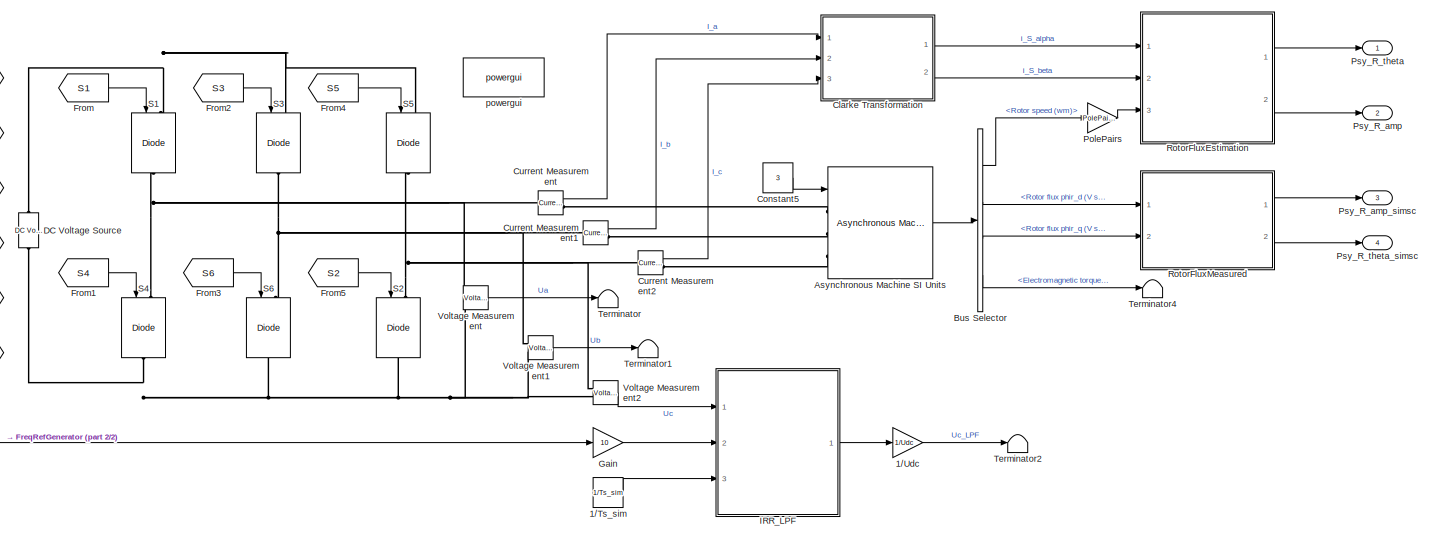
[diagram: root canvas - part 1/2, right side, full height]
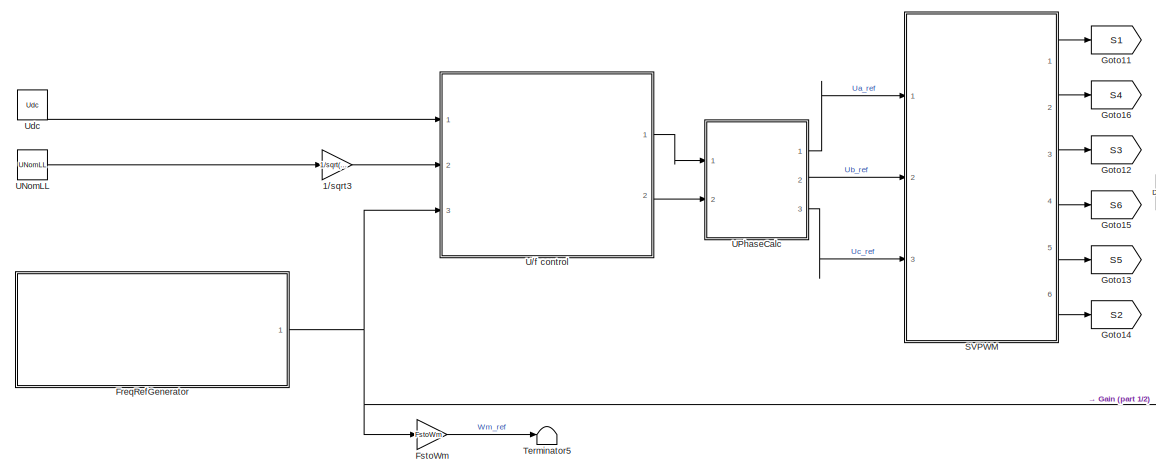
[diagram: root canvas - part 2/2, left side, full height]
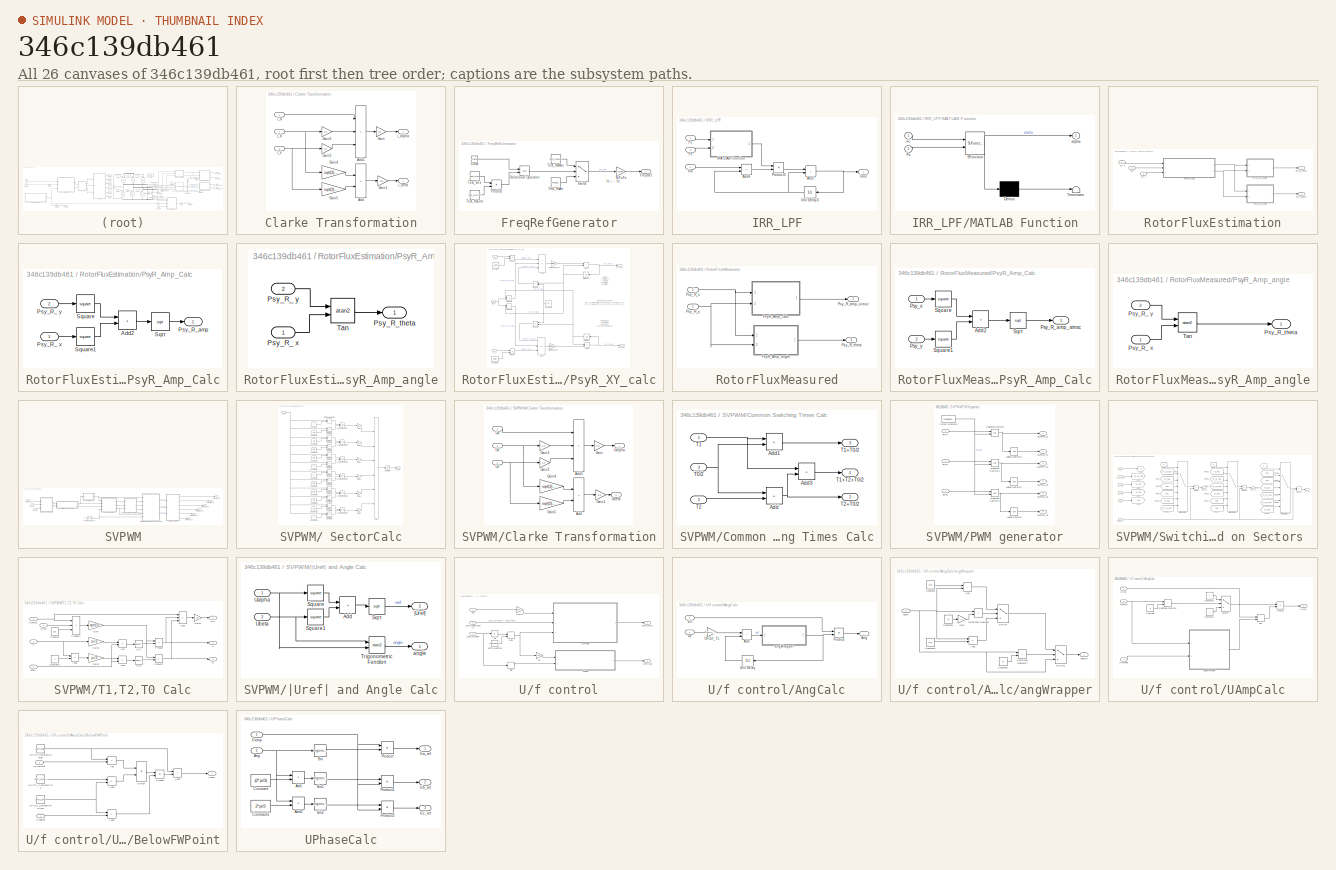
[diagram: thumbnail index - all 26 canvases of the model, root first then tree order]
MODEL slx_346c139db461
KIND model
CONFIG AbsTol = auto
CONFIG EnableMultiTasking = off
CONFIG FixedStep = Ts_sim
CONFIG MaxStep = Ts_sim
CONFIG MinStep = auto
CONFIG RelTol = 1e-3
CONFIG SampleTimeConstraint = Unconstrained
CONFIG SolverName = FixedStepAuto
CONFIG StartTime = 0.0
CONFIG StopTime = SimTime
BLOCK [Constant] 1//Ts_sim
  Value = 1/Ts_sim
BLOCK [Gain] 1//Udc
  Gain = 1/Udc
BLOCK [Gain] 1//sqrt3
  Gain = 1/sqrt(3)
BLOCK [Reference] Asynchronous Machine SI Units  REF=spsAsynchronousMachineSIUnitsLib/Asynchronous Machine
SI Units
  Ports = [1, 1, 0, 0, 0, 3]
  SourceBlock = spsAsynchronousMachineSIUnitsLib/Asynchronous Machine\nSI Units
  SourceProductBaseCode = PS
  SourceType = Asynchronous Machine
BLOCK [BusSelector] Bus Selector
  OutputSignals = Mechanical.Rotor speed (wm),Rotor measurements.Rotor flux phir_d (V s),Rotor measurements.Rotor flux phir_q (V s),Mechanical.Electromagnetic torque Te (N*m)
  Ports = [1, 4]
BLOCK [SubSystem] Clarke Transformation
  Ports = [3, 2]
  RequestExecContextInheritance = off
BLOCK [Sum] Clarke Transformation/Add
  IconShape = rectangular
  Inputs = +-
  Ports = [2, 1]
BLOCK [Sum] Clarke Transformation/Add1
  IconShape = rectangular
  Inputs = +--
  Ports = [3, 1]
BLOCK [Gain] Clarke Transformation/Gain
  Gain = 2/3
BLOCK [Gain] Clarke Transformation/Gain1
  Gain = 2/3
BLOCK [Gain] Clarke Transformation/Gain2
  Gain = 1/2
BLOCK [Gain] Clarke Transformation/Gain3
  Gain = 1/2
BLOCK [Gain] Clarke Transformation/Gain4
  Gain = sqrt(3) / 2
BLOCK [Gain] Clarke Transformation/Gain5
  Gain = sqrt(3) / 2
BLOCK [Inport] Clarke Transformation/i_a
BLOCK [Outport] Clarke Transformation/i_alpha
BLOCK [Inport] Clarke Transformation/i_b
  Port = 2
BLOCK [Outport] Clarke Transformation/i_beta
  Port = 2
BLOCK [Inport] Clarke Transformation/i_c
  Port = 3
BLOCK [Constant] Constant5
  Value = 3
BLOCK [Reference] Current Measurement  REF=spsCurrentMeasurementLib/Current Measurement
  Ports = [0, 1, 0, 0, 0, 1, 1]
  SourceBlock = spsCurrentMeasurementLib/Current Measurement
  SourceProductBaseCode = PS
  SourceType = Current Measurement
  UserDataPersistent = on
BLOCK [Reference] Current Measurement1  REF=spsCurrentMeasurementLib/Current Measurement
  Ports = [0, 1, 0, 0, 0, 1, 1]
  SourceBlock = spsCurrentMeasurementLib/Current Measurement
  SourceProductBaseCode = PS
  SourceType = Current Measurement
  UserDataPersistent = on
BLOCK [Reference] Current Measurement2  REF=spsCurrentMeasurementLib/Current Measurement
  Ports = [0, 1, 0, 0, 0, 1, 1]
  SourceBlock = spsCurrentMeasurementLib/Current Measurement
  SourceProductBaseCode = PS
  SourceType = Current Measurement
  UserDataPersistent = on
BLOCK [Reference] DC Voltage Source  REF=spsDCVoltageSourceLib/DC Voltage Source
  Ports = [0, 0, 0, 0, 0, 1, 1]
  SourceBlock = spsDCVoltageSourceLib/DC Voltage Source
  SourceProductBaseCode = PS
  SourceType = DC Voltage Source
BLOCK [SubSystem] FreqRefGenerator
  Ports = [0, 1]
  RequestExecContextInheritance = off
BLOCK [Clock] FreqRefGenerator/Clock
BLOCK [Outport] FreqRefGenerator/FreqRef
BLOCK [Gain] FreqRefGenerator/NrToFs
  Gain = NsToFs
BLOCK [Product] FreqRefGenerator/Product
  Ports = [2, 1]
BLOCK [RelationalOperator] FreqRefGenerator/Relational Operator
  InputSameDT = off
  OutDataTypeStr = boolean
  Ports = [2, 1]
  RndMeth = Simplest
BLOCK [Switch] FreqRefGenerator/Switch
  Criteria = u2 ~= 0
  InputSameDT = off
  SaturateOnIntegerOverflow = off
  Threshold = Ts_stair * NsCntr
BLOCK [Reference] FreqRefGenerator/Test_NsArr  REF=simulink/Sources/Repeating
Sequence
Stair
  Ports = [0, 1]
  SourceBlock = simulink/Sources/Repeating\nSequence\nStair
  SourceProductBaseCode = SL
  SourceType = Repeating Sequence Stair
BLOCK [Constant] FreqRefGenerator/Test_NsCntr
  Value = Test_NsCntr
BLOCK [Constant] FreqRefGenerator/Test_NsMax
  Value = Test_NsMax
BLOCK [Constant] FreqRefGenerator/Test_wTs
  Value = Test_wTs
BLOCK [From] From
  GotoTag = S1
BLOCK [From] From1
  GotoTag = S4
BLOCK [From] From2
  GotoTag = S3
BLOCK [From] From3
  GotoTag = S6
BLOCK [From] From4
  GotoTag = S5
BLOCK [From] From5
  GotoTag = S2
BLOCK [Gain] FstoWm
  Gain = FstoWm
BLOCK [Gain] Gain
  Gain = 10
BLOCK [Goto] Goto11
  GotoTag = S1
BLOCK [Goto] Goto12
  GotoTag = S3
BLOCK [Goto] Goto13
  GotoTag = S5
BLOCK [Goto] Goto14
  GotoTag = S2
BLOCK [Goto] Goto15
  GotoTag = S6
BLOCK [Goto] Goto16
  GotoTag = S4
BLOCK [SubSystem] IRR_LPF
  Ports = [3, 1]
  RequestExecContextInheritance = off
BLOCK [Sum] IRR_LPF/Add6
  IconShape = rectangular
  Inputs = +-
  Ports = [2, 1]
BLOCK [Sum] IRR_LPF/Add7
  IconShape = rectangular
  Ports = [2, 1]
BLOCK [Inport] IRR_LPF/Fc
  Port = 2
BLOCK [Inport] IRR_LPF/Fs
  Port = 3
BLOCK [SubSystem] IRR_LPF/MATLAB Function
  ErrorFcn = Stateflow.Translate.translate
  PermitHierarchicalResolution = ExplicitOnly
  Ports = [2, 1]
  RequestExecContextInheritance = off
  SFBlockType = MATLAB Function
  TreatAsAtomicUnit = on
BLOCK [Demux] IRR_LPF/MATLAB Function/ Demux 
  Outputs = 1
  Ports = [1, 1]
BLOCK [S-Function] IRR_LPF/MATLAB Function/ SFunction 
  EnableBusSupport = on
  FunctionName = sf_sfun
  PortCounts = [2 2]
  Ports = [2, 2]
  SFcnIsStateOwnerBlock = off
  SFunctionDeploymentMode = off
  Tag = Stateflow S-Function 2
BLOCK [Terminator] IRR_LPF/MATLAB Function/ Terminator 
BLOCK [Inport] IRR_LPF/MATLAB Function/Fc
BLOCK [Inport] IRR_LPF/MATLAB Function/Fs
  Port = 2
BLOCK [Outport] IRR_LPF/MATLAB Function/alpha
BLOCK [Product] IRR_LPF/Product3
  Ports = [2, 1]
BLOCK [Inport] IRR_LPF/Uin
BLOCK [UnitDelay] IRR_LPF/Unit Delay3
  HasFrameUpgradeWarning = on
  NameLocation = top
  SampleTime = -1
BLOCK [Outport] IRR_LPF/Uout
BLOCK [Gain] PolePairs
  Gain = PolePairs
BLOCK [Outport] Psy_R_amp
  Port = 2
BLOCK [Outport] Psy_R_amp_simsc
  Port = 3
BLOCK [Outport] Psy_R_theta
BLOCK [Outport] Psy_R_theta_simsc
  Port = 4
BLOCK [SubSystem] RotorFluxEstimation
  Ports = [3, 2]
  RequestExecContextInheritance = off
BLOCK [SubSystem] RotorFluxEstimation/PsyR_Amp_Calc
  Ports = [2, 1]
  RequestExecContextInheritance = off
BLOCK [Sum] RotorFluxEstimation/PsyR_Amp_Calc/Add2
  IconShape = rectangular
  Ports = [2, 1]
BLOCK [Inport] RotorFluxEstimation/PsyR_Amp_Calc/Psy_R_ x
BLOCK [Inport] RotorFluxEstimation/PsyR_Amp_Calc/Psy_R_ y
  Port = 2
BLOCK [Outport] RotorFluxEstimation/PsyR_Amp_Calc/Psy_R_amp
BLOCK [Sqrt] RotorFluxEstimation/PsyR_Amp_Calc/Sqrt
BLOCK [Math] RotorFluxEstimation/PsyR_Amp_Calc/Square
  Operator = square
  Ports = [1, 1]
BLOCK [Math] RotorFluxEstimation/PsyR_Amp_Calc/Square1
  Operator = square
  Ports = [1, 1]
BLOCK [SubSystem] RotorFluxEstimation/PsyR_Amp_angle
  Ports = [2, 1]
  RequestExecContextInheritance = off
BLOCK [Inport] RotorFluxEstimation/PsyR_Amp_angle/Psy_R_ x
BLOCK [Inport] RotorFluxEstimation/PsyR_Amp_angle/Psy_R_ y
  Port = 2
BLOCK [Outport] RotorFluxEstimation/PsyR_Amp_angle/Psy_R_theta
BLOCK [Trigonometry] RotorFluxEstimation/PsyR_Amp_angle/Tan
  Operator = atan2
  Ports = [2, 1]
BLOCK [SubSystem] RotorFluxEstimation/PsyR_XY_calc
  Ports = [3, 2]
  RequestExecContextInheritance = off
BLOCK [Sum] RotorFluxEstimation/PsyR_XY_calc/Add
  IconShape = rectangular
  Inputs = +--
  Ports = [3, 1]
BLOCK [Sum] RotorFluxEstimation/PsyR_XY_calc/Add1
  IconShape = rectangular
  Ports = [2, 1]
BLOCK [Sum] RotorFluxEstimation/PsyR_XY_calc/Add2
  IconShape = rectangular
  Ports = [2, 1]
BLOCK [Sum] RotorFluxEstimation/PsyR_XY_calc/Add3
  IconShape = rectangular
  Inputs = -++
  Ports = [3, 1]
BLOCK [Constant] RotorFluxEstimation/PsyR_XY_calc/Constant
  Value = Lm / Tr
BLOCK [Constant] RotorFluxEstimation/PsyR_XY_calc/Constant1
  Value = Lm / Tr
BLOCK [Constant] RotorFluxEstimation/PsyR_XY_calc/Constant3
  NameLocation = top
  Value = 1/Tr
BLOCK [Product] RotorFluxEstimation/PsyR_XY_calc/Product
  Ports = [2, 1]
BLOCK [Product] RotorFluxEstimation/PsyR_XY_calc/Product1
  Ports = [2, 1]
BLOCK [Product] RotorFluxEstimation/PsyR_XY_calc/Product2
  Ports = [2, 1]
BLOCK [Product] RotorFluxEstimation/PsyR_XY_calc/Product3
  Ports = [2, 1]
BLOCK [Product] RotorFluxEstimation/PsyR_XY_calc/Product4
  NameLocation = top
  Ports = [2, 1]
BLOCK [Product] RotorFluxEstimation/PsyR_XY_calc/Product5
  NameLocation = top
  Ports = [2, 1]
BLOCK [Outport] RotorFluxEstimation/PsyR_XY_calc/Psy_R_ x
BLOCK [Outport] RotorFluxEstimation/PsyR_XY_calc/Psy_R_ y
  Port = 2
BLOCK [Gain] RotorFluxEstimation/PsyR_XY_calc/RotFluxEst_Ts
  Gain = RotFluxEst_Ts
BLOCK [Gain] RotorFluxEstimation/PsyR_XY_calc/RotFluxEst_Ts1
  Gain = RotFluxEst_Ts
BLOCK [UnitDelay] RotorFluxEstimation/PsyR_XY_calc/Unit Delay2
  HasFrameUpgradeWarning = on
  NameLocation = top
  SampleTime = -1
BLOCK [UnitDelay] RotorFluxEstimation/PsyR_XY_calc/Unit Delay3
  HasFrameUpgradeWarning = on
  NameLocation = top
  SampleTime = -1
BLOCK [Inport] RotorFluxEstimation/PsyR_XY_calc/i_S_ x
BLOCK [Inport] RotorFluxEstimation/PsyR_XY_calc/i_S_ y
  Port = 3
BLOCK [Inport] RotorFluxEstimation/PsyR_XY_calc/w_R
  Port = 2
BLOCK [Outport] RotorFluxEstimation/Psy_R_amp
  Port = 2
BLOCK [Outport] RotorFluxEstimation/Psy_R_theta
BLOCK [Inport] RotorFluxEstimation/i_S_ x
BLOCK [Inport] RotorFluxEstimation/i_S_ y
  Port = 2
BLOCK [Inport] RotorFluxEstimation/w_R
  Port = 3
BLOCK [SubSystem] RotorFluxMeasured
  Ports = [2, 2]
  RequestExecContextInheritance = off
BLOCK [SubSystem] RotorFluxMeasured/PsyR_Amp_Calc
  Ports = [2, 1]
  RequestExecContextInheritance = off
BLOCK [Sum] RotorFluxMeasured/PsyR_Amp_Calc/Add2
  IconShape = rectangular
  Ports = [2, 1]
BLOCK [Outport] RotorFluxMeasured/PsyR_Amp_Calc/Psy_R_amp_simsc
BLOCK [Inport] RotorFluxMeasured/PsyR_Amp_Calc/Psy_x
BLOCK [Inport] RotorFluxMeasured/PsyR_Amp_Calc/Psy_y
  Port = 2
BLOCK [Sqrt] RotorFluxMeasured/PsyR_Amp_Calc/Sqrt
BLOCK [Math] RotorFluxMeasured/PsyR_Amp_Calc/Square
  Operator = square
  Ports = [1, 1]
BLOCK [Math] RotorFluxMeasured/PsyR_Amp_Calc/Square1
  Operator = square
  Ports = [1, 1]
BLOCK [SubSystem] RotorFluxMeasured/PsyR_Amp_angle
  Ports = [2, 1]
  RequestExecContextInheritance = off
BLOCK [Inport] RotorFluxMeasured/PsyR_Amp_angle/Psy_R_ x
BLOCK [Inport] RotorFluxMeasured/PsyR_Amp_angle/Psy_R_ y
  Port = 2
BLOCK [Outport] RotorFluxMeasured/PsyR_Amp_angle/Psy_R_theta
BLOCK [Trigonometry] RotorFluxMeasured/PsyR_Amp_angle/Tan
  Operator = atan2
  Ports = [2, 1]
BLOCK [Outport] RotorFluxMeasured/Psy_R_amp_simsc
BLOCK [Outport] RotorFluxMeasured/Psy_R_theta
  Port = 2
BLOCK [Inport] RotorFluxMeasured/Psy_R_x
BLOCK [Inport] RotorFluxMeasured/Psy_R_y
  Port = 2
BLOCK [Reference] S1  REF=spsIGBTDiodeLib/IGBT//Diode
  NameLocation = right
  Ports = [1, 0, 0, 0, 0, 1, 1]
  SourceBlock = spsIGBTDiodeLib/IGBT//Diode
  SourceProductBaseCode = PS
  SourceType = IGBT/Diode
BLOCK [Reference] S2  REF=spsIGBTDiodeLib/IGBT//Diode
  NameLocation = right
  Ports = [1, 0, 0, 0, 0, 1, 1]
  SourceBlock = spsIGBTDiodeLib/IGBT//Diode
  SourceProductBaseCode = PS
  SourceType = IGBT/Diode
BLOCK [Reference] S3  REF=spsIGBTDiodeLib/IGBT//Diode
  NameLocation = right
  Ports = [1, 0, 0, 0, 0, 1, 1]
  SourceBlock = spsIGBTDiodeLib/IGBT//Diode
  SourceProductBaseCode = PS
  SourceType = IGBT/Diode
BLOCK [Reference] S4  REF=spsIGBTDiodeLib/IGBT//Diode
  NameLocation = right
  Ports = [1, 0, 0, 0, 0, 1, 1]
  SourceBlock = spsIGBTDiodeLib/IGBT//Diode
  SourceProductBaseCode = PS
  SourceType = IGBT/Diode
BLOCK [Reference] S5  REF=spsIGBTDiodeLib/IGBT//Diode
  NameLocation = right
  Ports = [1, 0, 0, 0, 0, 1, 1]
  SourceBlock = spsIGBTDiodeLib/IGBT//Diode
  SourceProductBaseCode = PS
  SourceType = IGBT/Diode
BLOCK [Reference] S6  REF=spsIGBTDiodeLib/IGBT//Diode
  NameLocation = right
  Ports = [1, 0, 0, 0, 0, 1, 1]
  SourceBlock = spsIGBTDiodeLib/IGBT//Diode
  SourceProductBaseCode = PS
  SourceType = IGBT/Diode
BLOCK [SubSystem] SVPWM
  Ports = [3, 6]
  RequestExecContextInheritance = off
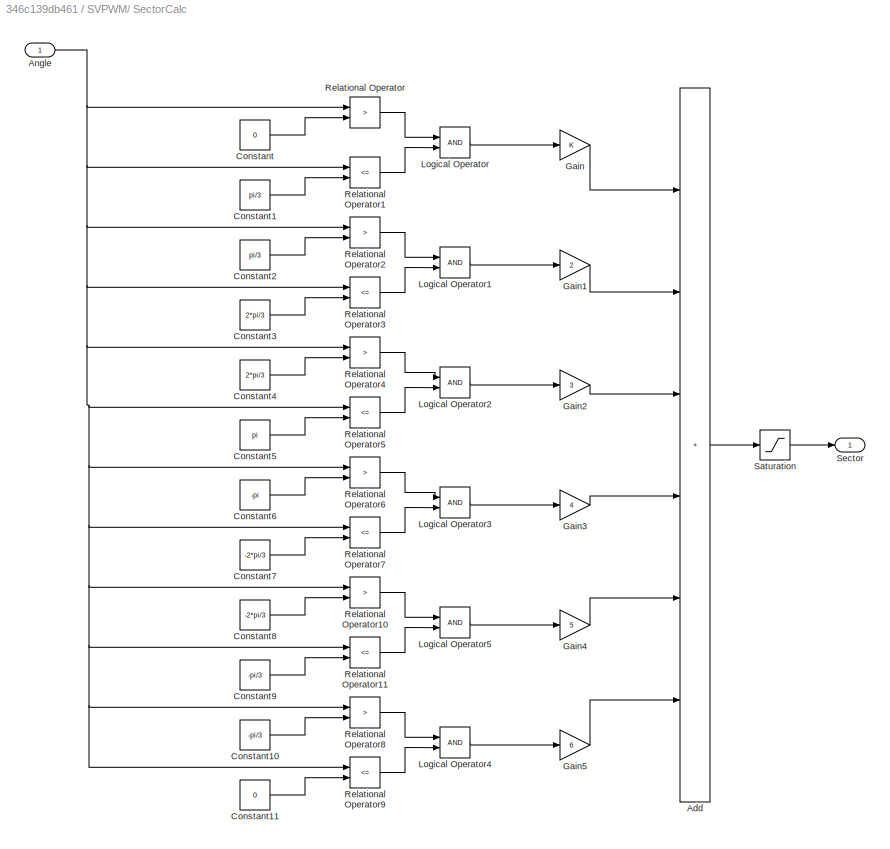
BLOCK [SubSystem] SVPWM/ SectorCalc
  Ports = [1, 1]
  RequestExecContextInheritance = off
BLOCK [Sum] SVPWM/ SectorCalc/Add
  IconShape = rectangular
  Inputs = ++++++
  Ports = [6, 1]
BLOCK [Inport] SVPWM/ SectorCalc/Angle
BLOCK [Constant] SVPWM/ SectorCalc/Constant
  Value = 0
BLOCK [Constant] SVPWM/ SectorCalc/Constant1
  Value = pi/3
BLOCK [Constant] SVPWM/ SectorCalc/Constant10
  Value = -pi/3
BLOCK [Constant] SVPWM/ SectorCalc/Constant11
  Value = 0
BLOCK [Constant] SVPWM/ SectorCalc/Constant2
  Value = pi/3
BLOCK [Constant] SVPWM/ SectorCalc/Constant3
  Value = 2*pi/3
BLOCK [Constant] SVPWM/ SectorCalc/Constant4
  Value = 2*pi/3
BLOCK [Constant] SVPWM/ SectorCalc/Constant5
  Value = pi
BLOCK [Constant] SVPWM/ SectorCalc/Constant6
  Value = -pi
BLOCK [Constant] SVPWM/ SectorCalc/Constant7
  Value = -2*pi/3
BLOCK [Constant] SVPWM/ SectorCalc/Constant8
  Value = -2*pi/3
BLOCK [Constant] SVPWM/ SectorCalc/Constant9
  Value = -pi/3
BLOCK [Gain] SVPWM/ SectorCalc/Gain
BLOCK [Gain] SVPWM/ SectorCalc/Gain1
  Gain = 2
BLOCK [Gain] SVPWM/ SectorCalc/Gain2
  Gain = 3
BLOCK [Gain] SVPWM/ SectorCalc/Gain3
  Gain = 4
BLOCK [Gain] SVPWM/ SectorCalc/Gain4
  Gain = 5
BLOCK [Gain] SVPWM/ SectorCalc/Gain5
  Gain = 6
BLOCK [Logic] SVPWM/ SectorCalc/Logical Operator
  AllPortsSameDT = off
  OutDataTypeStr = boolean
  Ports = [2, 1]
BLOCK [Logic] SVPWM/ SectorCalc/Logical Operator1
  AllPortsSameDT = off
  OutDataTypeStr = boolean
  Ports = [2, 1]
BLOCK [Logic] SVPWM/ SectorCalc/Logical Operator2
  AllPortsSameDT = off
  OutDataTypeStr = boolean
  Ports = [2, 1]
BLOCK [Logic] SVPWM/ SectorCalc/Logical Operator3
  AllPortsSameDT = off
  OutDataTypeStr = boolean
  Ports = [2, 1]
BLOCK [Logic] SVPWM/ SectorCalc/Logical Operator4
  AllPortsSameDT = off
  OutDataTypeStr = boolean
  Ports = [2, 1]
BLOCK [Logic] SVPWM/ SectorCalc/Logical Operator5
  AllPortsSameDT = off
  OutDataTypeStr = boolean
  Ports = [2, 1]
BLOCK [RelationalOperator] SVPWM/ SectorCalc/Relational Operator
  InputSameDT = off
  Operator = >
  OutDataTypeStr = boolean
  Ports = [2, 1]
  RndMeth = Simplest
BLOCK [RelationalOperator] SVPWM/ SectorCalc/Relational Operator1
  InputSameDT = off
  Operator = <=
  OutDataTypeStr = boolean
  Ports = [2, 1]
  RndMeth = Simplest
BLOCK [RelationalOperator] SVPWM/ SectorCalc/Relational Operator10
  InputSameDT = off
  Operator = >
  OutDataTypeStr = boolean
  Ports = [2, 1]
  RndMeth = Simplest
BLOCK [RelationalOperator] SVPWM/ SectorCalc/Relational Operator11
  InputSameDT = off
  Operator = <=
  OutDataTypeStr = boolean
  Ports = [2, 1]
  RndMeth = Simplest
BLOCK [RelationalOperator] SVPWM/ SectorCalc/Relational Operator2
  InputSameDT = off
  Operator = >
  OutDataTypeStr = boolean
  Ports = [2, 1]
  RndMeth = Simplest
BLOCK [RelationalOperator] SVPWM/ SectorCalc/Relational Operator3
  InputSameDT = off
  Operator = <=
  OutDataTypeStr = boolean
  Ports = [2, 1]
  RndMeth = Simplest
BLOCK [RelationalOperator] SVPWM/ SectorCalc/Relational Operator4
  InputSameDT = off
  Operator = >
  OutDataTypeStr = boolean
  Ports = [2, 1]
  RndMeth = Simplest
BLOCK [RelationalOperator] SVPWM/ SectorCalc/Relational Operator5
  InputSameDT = off
  Operator = <=
  OutDataTypeStr = boolean
  Ports = [2, 1]
  RndMeth = Simplest
BLOCK [RelationalOperator] SVPWM/ SectorCalc/Relational Operator6
  InputSameDT = off
  Operator = >
  OutDataTypeStr = boolean
  Ports = [2, 1]
  RndMeth = Simplest
BLOCK [RelationalOperator] SVPWM/ SectorCalc/Relational Operator7
  InputSameDT = off
  Operator = <=
  OutDataTypeStr = boolean
  Ports = [2, 1]
  RndMeth = Simplest
BLOCK [RelationalOperator] SVPWM/ SectorCalc/Relational Operator8
  InputSameDT = off
  Operator = >
  OutDataTypeStr = boolean
  Ports = [2, 1]
  RndMeth = Simplest
BLOCK [RelationalOperator] SVPWM/ SectorCalc/Relational Operator9
  InputSameDT = off
  Operator = <=
  OutDataTypeStr = boolean
  Ports = [2, 1]
  RndMeth = Simplest
BLOCK [Saturate] SVPWM/ SectorCalc/Saturation
  LowerLimit = 1
  UpperLimit = 6
BLOCK [Outport] SVPWM/ SectorCalc/Sector
BLOCK [SubSystem] SVPWM/Clarke Transformation
  Ports = [3, 2]
  RequestExecContextInheritance = off
BLOCK [Sum] SVPWM/Clarke Transformation/Add
  IconShape = rectangular
  Inputs = +-
  Ports = [2, 1]
BLOCK [Sum] SVPWM/Clarke Transformation/Add1
  IconShape = rectangular
  Inputs = +--
  Ports = [3, 1]
BLOCK [Gain] SVPWM/Clarke Transformation/Gain
  Gain = 2/3
BLOCK [Gain] SVPWM/Clarke Transformation/Gain1
  Gain = 2/3
BLOCK [Gain] SVPWM/Clarke Transformation/Gain2
  Gain = 1/2
BLOCK [Gain] SVPWM/Clarke Transformation/Gain3
  Gain = 1/2
BLOCK [Gain] SVPWM/Clarke Transformation/Gain4
  Gain = sqrt(3) / 2
BLOCK [Gain] SVPWM/Clarke Transformation/Gain5
  Gain = sqrt(3) / 2
BLOCK [Inport] SVPWM/Clarke Transformation/Ua
BLOCK [Outport] SVPWM/Clarke Transformation/Ualpha
BLOCK [Inport] SVPWM/Clarke Transformation/Ub
  Port = 2
BLOCK [Outport] SVPWM/Clarke Transformation/Ubeta
  Port = 2
BLOCK [Inport] SVPWM/Clarke Transformation/Uc
  Port = 3
BLOCK [SubSystem] SVPWM/Common Switching Times Calc
  Ports = [3, 3]
  RequestExecContextInheritance = off
BLOCK [Sum] SVPWM/Common Switching Times Calc/Add
  IconShape = rectangular
  Ports = [2, 1]
BLOCK [Sum] SVPWM/Common Switching Times Calc/Add1
  IconShape = rectangular
  Ports = [2, 1]
BLOCK [Sum] SVPWM/Common Switching Times Calc/Add3
  IconShape = rectangular
  Ports = [2, 1]
BLOCK [Inport] SVPWM/Common Switching Times Calc/T0//2
  Port = 3
BLOCK [Inport] SVPWM/Common Switching Times Calc/T1
BLOCK [Outport] SVPWM/Common Switching Times Calc/T1+T0//2
  Port = 3
BLOCK [Outport] SVPWM/Common Switching Times Calc/T1+T2+T0//2
BLOCK [Inport] SVPWM/Common Switching Times Calc/T2
  Port = 2
BLOCK [Outport] SVPWM/Common Switching Times Calc/T2+T0//2
  Port = 2
BLOCK [SubSystem] SVPWM/PWM generator
  Ports = [3, 6]
  RequestExecContextInheritance = off
BLOCK [Reference] SVPWM/PWM generator/Carrier Generator  REF=simulink/Sources/Repeating
Sequence
  Ports = [0, 1]
  SourceBlock = simulink/Sources/Repeating\nSequence
  SourceProductBaseCode = SL
  SourceType = Repeating table
BLOCK [Logic] SVPWM/PWM generator/Logical Operator
  AllPortsSameDT = off
  Operator = NOT
  OutDataTypeStr = boolean
  Ports = [1, 1]
BLOCK [Logic] SVPWM/PWM generator/Logical Operator1
  AllPortsSameDT = off
  Operator = NOT
  OutDataTypeStr = boolean
  Ports = [1, 1]
BLOCK [Logic] SVPWM/PWM generator/Logical Operator2
  AllPortsSameDT = off
  Operator = NOT
  OutDataTypeStr = boolean
  Ports = [1, 1]
BLOCK [RelationalOperator] SVPWM/PWM generator/Relational Operator
  InputSameDT = off
  OutDataTypeStr = boolean
  Ports = [2, 1]
  RndMeth = Simplest
BLOCK [RelationalOperator] SVPWM/PWM generator/Relational Operator2
  InputSameDT = off
  OutDataTypeStr = boolean
  Ports = [2, 1]
  RndMeth = Simplest
BLOCK [RelationalOperator] SVPWM/PWM generator/Relational Operator4
  InputSameDT = off
  OutDataTypeStr = boolean
  Ports = [2, 1]
  RndMeth = Simplest
BLOCK [Outport] SVPWM/PWM generator/SWPWM_S1
BLOCK [Outport] SVPWM/PWM generator/SWPWM_S2
  Port = 6
BLOCK [Outport] SVPWM/PWM generator/SWPWM_S3
  Port = 3
BLOCK [Outport] SVPWM/PWM generator/SWPWM_S4
  Port = 2
BLOCK [Outport] SVPWM/PWM generator/SWPWM_S5
  Port = 5
BLOCK [Outport] SVPWM/PWM generator/SWPWM_S6
  Port = 4
BLOCK [Inport] SVPWM/PWM generator/Sin_S1
BLOCK [Inport] SVPWM/PWM generator/Sin_S3
  Port = 2
BLOCK [Inport] SVPWM/PWM generator/Sin_S5
  Port = 3
BLOCK [Constant] SVPWM/SVPWM_SampTs
  Value = SVPWM_SampTs
BLOCK [Outport] SVPWM/SWPWM_S1
BLOCK [Outport] SVPWM/SWPWM_S2
  Port = 6
BLOCK [Outport] SVPWM/SWPWM_S3
  Port = 3
BLOCK [Outport] SVPWM/SWPWM_S4
  Port = 2
BLOCK [Outport] SVPWM/SWPWM_S5
  Port = 5
BLOCK [Outport] SVPWM/SWPWM_S6
  Port = 4
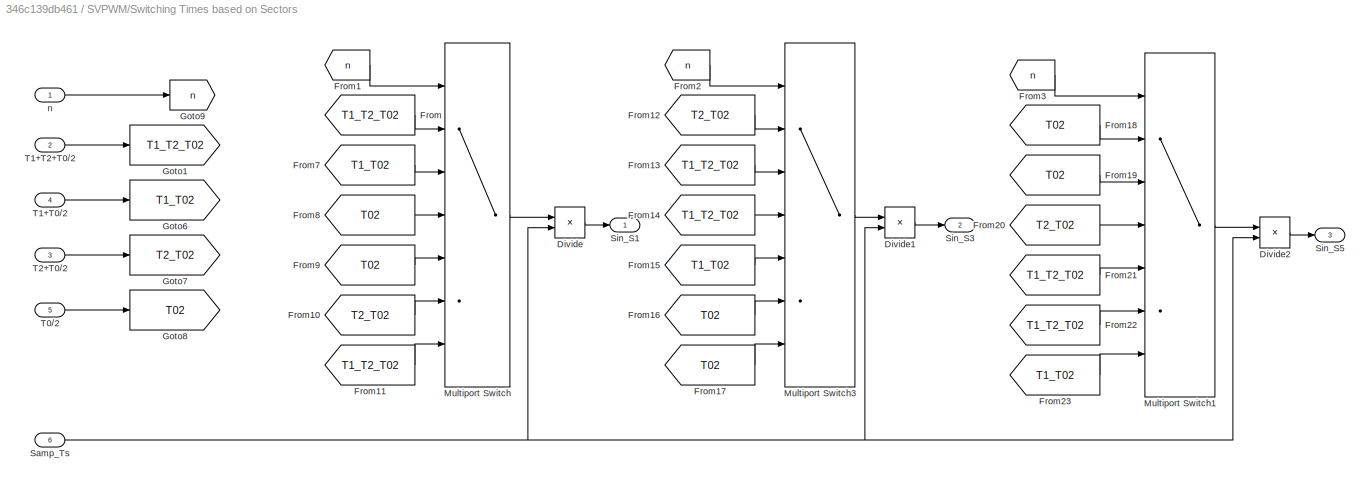
BLOCK [SubSystem] SVPWM/Switching Times based on Sectors 
  Ports = [6, 3]
  RequestExecContextInheritance = off
BLOCK [Product] SVPWM/Switching Times based on Sectors /Divide
  Inputs = */
  Ports = [2, 1]
BLOCK [Product] SVPWM/Switching Times based on Sectors /Divide1
  Inputs = */
  Ports = [2, 1]
BLOCK [Product] SVPWM/Switching Times based on Sectors /Divide2
  Inputs = */
  Ports = [2, 1]
BLOCK [From] SVPWM/Switching Times based on Sectors /From
  GotoTag = T1_T2_T02
BLOCK [From] SVPWM/Switching Times based on Sectors /From1
  GotoTag = n
BLOCK [From] SVPWM/Switching Times based on Sectors /From10
  GotoTag = T2_T02
BLOCK [From] SVPWM/Switching Times based on Sectors /From11
  GotoTag = T1_T2_T02
BLOCK [From] SVPWM/Switching Times based on Sectors /From12
  GotoTag = T2_T02
BLOCK [From] SVPWM/Switching Times based on Sectors /From13
  GotoTag = T1_T2_T02
BLOCK [From] SVPWM/Switching Times based on Sectors /From14
  GotoTag = T1_T2_T02
BLOCK [From] SVPWM/Switching Times based on Sectors /From15
  GotoTag = T1_T02
BLOCK [From] SVPWM/Switching Times based on Sectors /From16
  GotoTag = T02
BLOCK [From] SVPWM/Switching Times based on Sectors /From17
  GotoTag = T02
BLOCK [From] SVPWM/Switching Times based on Sectors /From18
  GotoTag = T02
BLOCK [From] SVPWM/Switching Times based on Sectors /From19
  GotoTag = T02
BLOCK [From] SVPWM/Switching Times based on Sectors /From2
  GotoTag = n
BLOCK [From] SVPWM/Switching Times based on Sectors /From20
  GotoTag = T2_T02
BLOCK [From] SVPWM/Switching Times based on Sectors /From21
  GotoTag = T1_T2_T02
BLOCK [From] SVPWM/Switching Times based on Sectors /From22
  GotoTag = T1_T2_T02
BLOCK [From] SVPWM/Switching Times based on Sectors /From23
  GotoTag = T1_T02
BLOCK [From] SVPWM/Switching Times based on Sectors /From3
  GotoTag = n
BLOCK [From] SVPWM/Switching Times based on Sectors /From7
  GotoTag = T1_T02
BLOCK [From] SVPWM/Switching Times based on Sectors /From8
  GotoTag = T02
BLOCK [From] SVPWM/Switching Times based on Sectors /From9
  GotoTag = T02
BLOCK [Goto] SVPWM/Switching Times based on Sectors /Goto1
  GotoTag = T1_T2_T02
BLOCK [Goto] SVPWM/Switching Times based on Sectors /Goto6
  GotoTag = T1_T02
BLOCK [Goto] SVPWM/Switching Times based on Sectors /Goto7
  GotoTag = T2_T02
BLOCK [Goto] SVPWM/Switching Times based on Sectors /Goto8
  GotoTag = T02
BLOCK [Goto] SVPWM/Switching Times based on Sectors /Goto9
  GotoTag = n
BLOCK [MultiPortSwitch] SVPWM/Switching Times based on Sectors /Multiport Switch
  DataPortIndices = {1,2,3,4,5,6}
  DataPortOrder = Specify indices
  DiagnosticForDefault = None
  InputSameDT = off
  Inputs = 6
  Ports = [7, 1]
  SaturateOnIntegerOverflow = off
BLOCK [MultiPortSwitch] SVPWM/Switching Times based on Sectors /Multiport Switch1
  DataPortIndices = {1,2,3,4,5,6}
  DataPortOrder = Specify indices
  DiagnosticForDefault = None
  InputSameDT = off
  Inputs = 6
  Ports = [7, 1]
  SaturateOnIntegerOverflow = off
BLOCK [MultiPortSwitch] SVPWM/Switching Times based on Sectors /Multiport Switch3
  DataPortIndices = {1,2,3,4,5,6}
  DataPortOrder = Specify indices
  DiagnosticForDefault = None
  InputSameDT = off
  Inputs = 6
  Ports = [7, 1]
  SaturateOnIntegerOverflow = off
BLOCK [Inport] SVPWM/Switching Times based on Sectors /Samp_Ts
  Port = 6
BLOCK [Outport] SVPWM/Switching Times based on Sectors /Sin_S1
BLOCK [Outport] SVPWM/Switching Times based on Sectors /Sin_S3
  Port = 2
BLOCK [Outport] SVPWM/Switching Times based on Sectors /Sin_S5
  Port = 3
BLOCK [Inport] SVPWM/Switching Times based on Sectors /T0//2
  Port = 5
BLOCK [Inport] SVPWM/Switching Times based on Sectors /T1+T0//2
  Port = 4
BLOCK [Inport] SVPWM/Switching Times based on Sectors /T1+T2+T0//2
  Port = 2
BLOCK [Inport] SVPWM/Switching Times based on Sectors /T2+T0//2
  Port = 3
BLOCK [Inport] SVPWM/Switching Times based on Sectors /n
BLOCK [SubSystem] SVPWM/T1,T2,T0 Calc
  Ports = [4, 3]
  RequestExecContextInheritance = off
BLOCK [Sum] SVPWM/T1,T2,T0 Calc/Add
  IconShape = rectangular
  Inputs = +-
  Ports = [2, 1]
BLOCK [Sum] SVPWM/T1,T2,T0 Calc/Add1
  IconShape = rectangular
  Inputs = +-
  Ports = [2, 1]
BLOCK [Sum] SVPWM/T1,T2,T0 Calc/Add2
  IconShape = rectangular
  Inputs = -+
  Ports = [2, 1]
BLOCK [Sum] SVPWM/T1,T2,T0 Calc/Add3
  IconShape = rectangular
  Inputs = +--
  Ports = [3, 1]
BLOCK [Constant] SVPWM/T1,T2,T0 Calc/Constant
  Value = Udc
BLOCK [Constant] SVPWM/T1,T2,T0 Calc/Constant3
BLOCK [Gain] SVPWM/T1,T2,T0 Calc/Gain
  Gain = sqrt(3)
BLOCK [Gain] SVPWM/T1,T2,T0 Calc/Gain1
  Gain = pi/3
BLOCK [Gain] SVPWM/T1,T2,T0 Calc/Gain2
  Gain = pi/3
BLOCK [Gain] SVPWM/T1,T2,T0 Calc/Gain3
  Gain = 1/2
BLOCK [Product] SVPWM/T1,T2,T0 Calc/Product
  Ports = [2, 1]
BLOCK [Product] SVPWM/T1,T2,T0 Calc/Product1
  Ports = [2, 1]
BLOCK [Product] SVPWM/T1,T2,T0 Calc/Product2
  Inputs = **/
  Ports = [3, 1]
BLOCK [Inport] SVPWM/T1,T2,T0 Calc/SampTs
  Port = 4
BLOCK [Trigonometry] SVPWM/T1,T2,T0 Calc/Sin
  Ports = [1, 1]
BLOCK [Trigonometry] SVPWM/T1,T2,T0 Calc/Sin1
  Ports = [1, 1]
BLOCK [Outport] SVPWM/T1,T2,T0 Calc/T0//2
  Port = 3
BLOCK [Outport] SVPWM/T1,T2,T0 Calc/T1
BLOCK [Outport] SVPWM/T1,T2,T0 Calc/T2
  Port = 2
BLOCK [Inport] SVPWM/T1,T2,T0 Calc/angle
  Port = 2
BLOCK [Inport] SVPWM/T1,T2,T0 Calc/n
BLOCK [Inport] SVPWM/T1,T2,T0 Calc/|Uref|
  Port = 3
BLOCK [Inport] SVPWM/Ua_ref
BLOCK [Inport] SVPWM/Ub_ref
  Port = 2
BLOCK [Inport] SVPWM/Uc_ref
  Port = 3
BLOCK [SubSystem] SVPWM/|Uref| and Angle Calc
  Ports = [2, 2]
  RequestExecContextInheritance = off
BLOCK [Sum] SVPWM/|Uref| and Angle Calc/Add
  IconShape = rectangular
  Ports = [2, 1]
BLOCK [Sqrt] SVPWM/|Uref| and Angle Calc/Sqrt
BLOCK [Math] SVPWM/|Uref| and Angle Calc/Square
  Operator = square
  OutputSignalType = real
  Ports = [1, 1]
BLOCK [Math] SVPWM/|Uref| and Angle Calc/Square1
  Operator = square
  OutputSignalType = real
  Ports = [1, 1]
BLOCK [Trigonometry] SVPWM/|Uref| and Angle Calc/Trigonometric Function
  Operator = atan2
  Ports = [2, 1]
BLOCK [Inport] SVPWM/|Uref| and Angle Calc/Ualpha
BLOCK [Inport] SVPWM/|Uref| and Angle Calc/Ubeta
  Port = 2
BLOCK [Outport] SVPWM/|Uref| and Angle Calc/angle
BLOCK [Outport] SVPWM/|Uref| and Angle Calc/|Uref|
  Port = 2
BLOCK [Terminator] Terminator
BLOCK [Terminator] Terminator1
BLOCK [Terminator] Terminator2
BLOCK [Terminator] Terminator4
BLOCK [Terminator] Terminator5
BLOCK [SubSystem] U//f control
  Ports = [3, 2]
  RequestExecContextInheritance = off
BLOCK [Gain] U//f control/1//sqrt3
  Gain = 1/sqrt(3)
BLOCK [Gain] U//f control/2PI
  Gain = 2 * pi
BLOCK [Abs] U//f control/Abs
  SaturateOnIntegerOverflow = off
BLOCK [SubSystem] U//f control/AngCalc
  Ports = [2, 1]
  RequestExecContextInheritance = off
BLOCK [Sum] U//f control/AngCalc/Add
  IconShape = rectangular
  Ports = [2, 1]
BLOCK [Outport] U//f control/AngCalc/Ang
BLOCK [Product] U//f control/AngCalc/Product
  Ports = [2, 1]
BLOCK [Gain] U//f control/AngCalc/UFCtrl_Ts
  Gain = UFCtrl_Ts
BLOCK [UnitDelay] U//f control/AngCalc/Unit Delay
  HasFrameUpgradeWarning = on
  NameLocation = top
  SampleTime = -1
BLOCK [SubSystem] U//f control/AngCalc/angWrapper
  Ports = [1, 1]
  RequestExecContextInheritance = off
BLOCK [Sum] U//f control/AngCalc/angWrapper/Add
  IconShape = rectangular
  Ports = [2, 1]
BLOCK [Sum] U//f control/AngCalc/angWrapper/Add1
  IconShape = rectangular
  Inputs = +-
  Ports = [2, 1]
BLOCK [Constant] U//f control/AngCalc/angWrapper/Constant
  Value = 2*pi
BLOCK [Constant] U//f control/AngCalc/angWrapper/Constant1
  Value = pi
BLOCK [Constant] U//f control/AngCalc/angWrapper/Constant2
  Value = 2*pi
BLOCK [Constant] U//f control/AngCalc/angWrapper/Constant3
  Value = pi
BLOCK [Gain] U//f control/AngCalc/angWrapper/Gain
  Gain = -1
BLOCK [RelationalOperator] U//f control/AngCalc/angWrapper/Relational Operator
  InputSameDT = off
  Operator = <
  OutDataTypeStr = boolean
  Ports = [2, 1]
  RndMeth = Simplest
BLOCK [RelationalOperator] U//f control/AngCalc/angWrapper/Relational Operator1
  InputSameDT = off
  Operator = >
  OutDataTypeStr = boolean
  Ports = [2, 1]
  RndMeth = Simplest
BLOCK [Switch] U//f control/AngCalc/angWrapper/Switch
  Criteria = u2 ~= 0
  InputSameDT = off
  SaturateOnIntegerOverflow = off
  Threshold = Ts_stair * NsCntr
BLOCK [Switch] U//f control/AngCalc/angWrapper/Switch1
  Criteria = u2 ~= 0
  InputSameDT = off
  SaturateOnIntegerOverflow = off
  Threshold = Ts_stair * NsCntr
BLOCK [Inport] U//f control/AngCalc/angWrapper/angIn
BLOCK [Outport] U//f control/AngCalc/angWrapper/angOut
BLOCK [Inport] U//f control/AngCalc/dir
  Port = 2
BLOCK [Inport] U//f control/AngCalc/wr
BLOCK [MinMax] U//f control/Min1
  Inputs = 2
  Ports = [2, 1]
BLOCK [Signum] U//f control/Sign
BLOCK [SubSystem] U//f control/UAmpCalc
  Ports = [3, 1]
  RequestExecContextInheritance = off
BLOCK [SubSystem] U//f control/UAmpCalc/BelowFWPoint
  Ports = [2, 1]
  RequestExecContextInheritance = off
BLOCK [Sum] U//f control/UAmpCalc/BelowFWPoint/Add
  IconShape = rectangular
  Inputs = -+
  Ports = [2, 1]
BLOCK [Sum] U//f control/UAmpCalc/BelowFWPoint/Add1
  IconShape = rectangular
  Inputs = +-
  Ports = [2, 1]
BLOCK [Sum] U//f control/UAmpCalc/BelowFWPoint/Add2
  IconShape = rectangular
  Inputs = -+
  Ports = [2, 1]
BLOCK [Sum] U//f control/UAmpCalc/BelowFWPoint/Add3
  IconShape = rectangular
  Ports = [2, 1]
BLOCK [Product] U//f control/UAmpCalc/BelowFWPoint/Divide
  Inputs = */
  Ports = [2, 1]
BLOCK [Inport] U//f control/UAmpCalc/BelowFWPoint/FreqRef
BLOCK [Product] U//f control/UAmpCalc/BelowFWPoint/Product
  Ports = [2, 1]
BLOCK [Constant] U//f control/UAmpCalc/BelowFWPoint/UFCtrl_FWPointFreq
  Value = UFCtrl_FWPointFreq
BLOCK [Constant] U//f control/UAmpCalc/BelowFWPoint/UFCtrl_LinRegPointFreq
  Value = UFCtrl_LinRegPointFreq
BLOCK [Constant] U//f control/UAmpCalc/BelowFWPoint/UFCtrl_UBelowLinReg
  Value = UFCtrl_UBelowLinReg
BLOCK [Inport] U//f control/UAmpCalc/BelowFWPoint/UFWPoint
  Port = 2
BLOCK [Outport] U//f control/UAmpCalc/BelowFWPoint/Uamp
BLOCK [Constant] U//f control/UAmpCalc/Constant
  Value = 0
BLOCK [Constant] U//f control/UAmpCalc/Constant1
  Value = -1
BLOCK [Constant] U//f control/UAmpCalc/Constant2
BLOCK [Inport] U//f control/UAmpCalc/FreqRef
  Port = 3
BLOCK [MinMax] U//f control/UAmpCalc/Min
  Inputs = 2
  Ports = [2, 1]
BLOCK [Product] U//f control/UAmpCalc/Product
  Ports = [2, 1]
BLOCK [RelationalOperator] U//f control/UAmpCalc/Relational Operator
  InputSameDT = off
  Operator = >
  OutDataTypeStr = boolean
  Ports = [2, 1]
  RndMeth = Simplest
BLOCK [Switch] U//f control/UAmpCalc/Switch
  Criteria = u2 ~= 0
  InputSameDT = off
  SaturateOnIntegerOverflow = off
  Threshold = Ts_stair * NsCntr
BLOCK [Outport] U//f control/UAmpCalc/UAmp
BLOCK [Inport] U//f control/UAmpCalc/UFWPoint
  Port = 2
BLOCK [Inport] U//f control/UAmpCalc/Umax
BLOCK [Outport] U//f control/UFCtrl_Ang
  Port = 2
BLOCK [Inport] U//f control/UFCtrl_FreqRef
  Port = 3
BLOCK [Constant] U//f control/UFCtrl_MaxFreq
  Value = UFCtrl_MaxFreq
BLOCK [Outport] U//f control/UFCtrl_UAmp
BLOCK [Inport] U//f control/UFCtrl_UNomPhase
  Port = 2
BLOCK [Inport] U//f control/Udc
BLOCK [Constant] UNomLL
  Value = UNomLL
BLOCK [SubSystem] UPhaseCalc
  Ports = [2, 3]
  RequestExecContextInheritance = off
BLOCK [Sum] UPhaseCalc/Add
  IconShape = rectangular
  Ports = [2, 1]
BLOCK [Sum] UPhaseCalc/Add2
  IconShape = rectangular
  Ports = [2, 1]
BLOCK [Inport] UPhaseCalc/Ang
  Port = 2
BLOCK [Constant] UPhaseCalc/Constant
  Value = -(2*pi/3)
BLOCK [Constant] UPhaseCalc/Constant1
  Value = 2*pi/3
BLOCK [Product] UPhaseCalc/Product
  Ports = [2, 1]
BLOCK [Product] UPhaseCalc/Product1
  Ports = [2, 1]
BLOCK [Product] UPhaseCalc/Product2
  Ports = [2, 1]
BLOCK [Trigonometry] UPhaseCalc/Sin
  Ports = [1, 1]
BLOCK [Trigonometry] UPhaseCalc/Sin1
  Ports = [1, 1]
BLOCK [Trigonometry] UPhaseCalc/Sin2
  Ports = [1, 1]
BLOCK [Outport] UPhaseCalc/Ua_ref
BLOCK [Inport] UPhaseCalc/Uamp
BLOCK [Outport] UPhaseCalc/Ub_ref
  Port = 2
BLOCK [Outport] UPhaseCalc/Uc_ref
  Port = 3
BLOCK [Constant] Udc
  Value = Udc
BLOCK [Reference] Voltage Measurement  REF=spsVoltageMeasurementLib/Voltage Measurement
  Ports = [0, 1, 0, 0, 0, 2]
  SourceBlock = spsVoltageMeasurementLib/Voltage Measurement
  SourceProductBaseCode = PS
  SourceType = Voltage Measurement
  UserDataPersistent = on
BLOCK [Reference] Voltage Measurement1  REF=spsVoltageMeasurementLib/Voltage Measurement
  Ports = [0, 1, 0, 0, 0, 2]
  SourceBlock = spsVoltageMeasurementLib/Voltage Measurement
  SourceProductBaseCode = PS
  SourceType = Voltage Measurement
  UserDataPersistent = on
BLOCK [Reference] Voltage Measurement2  REF=spsVoltageMeasurementLib/Voltage Measurement
  Ports = [0, 1, 0, 0, 0, 2]
  SourceBlock = spsVoltageMeasurementLib/Voltage Measurement
  SourceProductBaseCode = PS
  SourceType = Voltage Measurement
  UserDataPersistent = on
BLOCK [Reference] powergui  REF=spspowerguiLib/powergui
  Ports = []
  Priority = 1
  SourceBlock = spspowerguiLib/powergui
  SourceProductBaseCode = PS
  SourceType = PSB option menu block
ANNOTATION FreqRefGenerator: Nr = ~ Ns
ANNOTATION RotorFluxEstimation/PsyR_XY_calc: Forward Euler h : sample time x[k] = x[k-1] + h y[k] = y[k-1] + h * f(x[k-1], y[k-1])
ANNOTATION RotorFluxEstimation/PsyR_XY_calc: Naming x => alpha y => beta S => stator R => rotor
ANNOTATION RotorFluxEstimation/PsyR_XY_calc: Current based equations Psy_ R _ x d/dt = Lm/Tr * i_ S _ x - w_ R * Psy_ R _ y - 1/Tr * Psy_ R _ x Psy_ R _ y d/dt = Lm/Tr * i_ S _ y + w_ R * Psy_ R _ x - 1/Tr * Psy_ R _ y
ANNOTATION U//f control: UFCtrl_UFWPoint = UNomPhase
LINE 1//Ts_sim:1 -> IRR_LPF:3
LINE 1//Udc:1 -> Terminator2:1
LINE 1//sqrt3:1 -> U//f control:2
LINE Asynchronous Machine SI Units:1 -> Bus Selector:1
LINE Bus Selector:1 -> PolePairs:1
LINE Bus Selector:2 -> RotorFluxMeasured:1
LINE Bus Selector:3 -> RotorFluxMeasured:2
LINE Bus Selector:4 -> Terminator4:1
LINE Clarke Transformation/Add1:1 -> Clarke Transformation/Gain:1
LINE Clarke Transformation/Add:1 -> Clarke Transformation/Gain1:1
LINE Clarke Transformation/Gain1:1 -> Clarke Transformation/i_beta:1
LINE Clarke Transformation/Gain2:1 -> Clarke Transformation/Add1:3
LINE Clarke Transformation/Gain3:1 -> Clarke Transformation/Add1:2
LINE Clarke Transformation/Gain4:1 -> Clarke Transformation/Add:1
LINE Clarke Transformation/Gain5:1 -> Clarke Transformation/Add:2
LINE Clarke Transformation/Gain:1 -> Clarke Transformation/i_alpha:1
LINE Clarke Transformation/i_a:1 -> Clarke Transformation/Add1:1
NET Clarke Transformation/i_b:1 -> Clarke Transformation/Gain3:1, Clarke Transformation/Gain4:1
NET Clarke Transformation/i_c:1 -> Clarke Transformation/Gain2:1, Clarke Transformation/Gain5:1
LINE Clarke Transformation:1 -> RotorFluxEstimation:1
LINE Clarke Transformation:2 -> RotorFluxEstimation:2
LINE Constant5:1 -> Asynchronous Machine SI Units:1
LINE Current Measurement1:1 -> Clarke Transformation:2
LINE Current Measurement2:1 -> Clarke Transformation:3
LINE Current Measurement:1 -> Clarke Transformation:1
LINE FreqRefGenerator/Clock:1 -> FreqRefGenerator/Relational Operator:1
LINE FreqRefGenerator/NrToFs:1 -> FreqRefGenerator/FreqRef:1
LINE FreqRefGenerator/Product:1 -> FreqRefGenerator/Relational Operator:2
LINE FreqRefGenerator/Relational Operator:1 -> FreqRefGenerator/Switch:2
LINE FreqRefGenerator/Switch:1 -> FreqRefGenerator/NrToFs:1
LINE FreqRefGenerator/Test_NsArr:1 -> FreqRefGenerator/Switch:3
LINE FreqRefGenerator/Test_NsCntr:1 -> FreqRefGenerator/Product:2
LINE FreqRefGenerator/Test_NsMax:1 -> FreqRefGenerator/Switch:1
LINE FreqRefGenerator/Test_wTs:1 -> FreqRefGenerator/Product:1
NET FreqRefGenerator:1 -> FstoWm:1, Gain:1, U//f control:3
LINE From1:1 -> S4:1
LINE From2:1 -> S3:1
LINE From3:1 -> S6:1
LINE From4:1 -> S5:1
LINE From5:1 -> S2:1
LINE From:1 -> S1:1
LINE FstoWm:1 -> Terminator5:1
LINE Gain:1 -> IRR_LPF:2
LINE IRR_LPF/Add6:1 -> IRR_LPF/Product3:2
NET IRR_LPF/Add7:1 -> IRR_LPF/Unit Delay3:1, IRR_LPF/Uout:1
LINE IRR_LPF/Fc:1 -> IRR_LPF/MATLAB Function:1
LINE IRR_LPF/Fs:1 -> IRR_LPF/MATLAB Function:2
LINE IRR_LPF/MATLAB Function:1 -> IRR_LPF/Product3:1
LINE IRR_LPF/Product3:1 -> IRR_LPF/Add7:1
LINE IRR_LPF/Uin:1 -> IRR_LPF/Add6:1
NET IRR_LPF/Unit Delay3:1 -> IRR_LPF/Add6:2, IRR_LPF/Add7:2
LINE IRR_LPF:1 -> 1//Udc:1
LINE PolePairs:1 -> RotorFluxEstimation:3
LINE RotorFluxEstimation/PsyR_Amp_Calc/Add2:1 -> RotorFluxEstimation/PsyR_Amp_Calc/Sqrt:1
LINE RotorFluxEstimation/PsyR_Amp_Calc/Psy_R_ x:1 -> RotorFluxEstimation/PsyR_Amp_Calc/Square1:1
LINE RotorFluxEstimation/PsyR_Amp_Calc/Psy_R_ y:1 -> RotorFluxEstimation/PsyR_Amp_Calc/Square:1
LINE RotorFluxEstimation/PsyR_Amp_Calc/Sqrt:1 -> RotorFluxEstimation/PsyR_Amp_Calc/Psy_R_amp:1
LINE RotorFluxEstimation/PsyR_Amp_Calc/Square1:1 -> RotorFluxEstimation/PsyR_Amp_Calc/Add2:2
LINE RotorFluxEstimation/PsyR_Amp_Calc/Square:1 -> RotorFluxEstimation/PsyR_Amp_Calc/Add2:1
LINE RotorFluxEstimation/PsyR_Amp_Calc:1 -> RotorFluxEstimation/Psy_R_amp:1
LINE RotorFluxEstimation/PsyR_Amp_angle/Psy_R_ x:1 -> RotorFluxEstimation/PsyR_Amp_angle/Tan:2
LINE RotorFluxEstimation/PsyR_Amp_angle/Psy_R_ y:1 -> RotorFluxEstimation/PsyR_Amp_angle/Tan:1
LINE RotorFluxEstimation/PsyR_Amp_angle/Tan:1 -> RotorFluxEstimation/PsyR_Amp_angle/Psy_R_theta:1
LINE RotorFluxEstimation/PsyR_Amp_angle:1 -> RotorFluxEstimation/Psy_R_theta:1
NET RotorFluxEstimation/PsyR_XY_calc/Add1:1 -> RotorFluxEstimation/PsyR_XY_calc/Psy_R_ x:1, RotorFluxEstimation/PsyR_XY_calc/Unit Delay2:1
NET RotorFluxEstimation/PsyR_XY_calc/Add2:1 -> RotorFluxEstimation/PsyR_XY_calc/Psy_R_ y:1, RotorFluxEstimation/PsyR_XY_calc/Unit Delay3:1
LINE RotorFluxEstimation/PsyR_XY_calc/Add3:1 -> RotorFluxEstimation/PsyR_XY_calc/RotFluxEst_Ts:1
LINE RotorFluxEstimation/PsyR_XY_calc/Add:1 -> RotorFluxEstimation/PsyR_XY_calc/RotFluxEst_Ts1:1
LINE RotorFluxEstimation/PsyR_XY_calc/Constant1:1 -> RotorFluxEstimation/PsyR_XY_calc/Product:2
NET RotorFluxEstimation/PsyR_XY_calc/Constant3:1 -> RotorFluxEstimation/PsyR_XY_calc/Product4:2, RotorFluxEstimation/PsyR_XY_calc/Product5:1
LINE RotorFluxEstimation/PsyR_XY_calc/Constant:1 -> RotorFluxEstimation/PsyR_XY_calc/Product1:2
LINE RotorFluxEstimation/PsyR_XY_calc/Product1:1 -> RotorFluxEstimation/PsyR_XY_calc/Add:1
LINE RotorFluxEstimation/PsyR_XY_calc/Product2:1 -> RotorFluxEstimation/PsyR_XY_calc/Add:2
LINE RotorFluxEstimation/PsyR_XY_calc/Product3:1 -> RotorFluxEstimation/PsyR_XY_calc/Add3:2
LINE RotorFluxEstimation/PsyR_XY_calc/Product4:1 -> RotorFluxEstimation/PsyR_XY_calc/Add:3
LINE RotorFluxEstimation/PsyR_XY_calc/Product5:1 -> RotorFluxEstimation/PsyR_XY_calc/Add3:1
LINE RotorFluxEstimation/PsyR_XY_calc/Product:1 -> RotorFluxEstimation/PsyR_XY_calc/Add3:3
LINE RotorFluxEstimation/PsyR_XY_calc/RotFluxEst_Ts1:1 -> RotorFluxEstimation/PsyR_XY_calc/Add1:1
LINE RotorFluxEstimation/PsyR_XY_calc/RotFluxEst_Ts:1 -> RotorFluxEstimation/PsyR_XY_calc/Add2:2
NET RotorFluxEstimation/PsyR_XY_calc/Unit Delay2:1 -> RotorFluxEstimation/PsyR_XY_calc/Add1:2, RotorFluxEstimation/PsyR_XY_calc/Product3:2, RotorFluxEstimation/PsyR_XY_calc/Product4:1
NET RotorFluxEstimation/PsyR_XY_calc/Unit Delay3:1 -> RotorFluxEstimation/PsyR_XY_calc/Add2:1, RotorFluxEstimation/PsyR_XY_calc/Product2:1, RotorFluxEstimation/PsyR_XY_calc/Product5:2
LINE RotorFluxEstimation/PsyR_XY_calc/i_S_ x:1 -> RotorFluxEstimation/PsyR_XY_calc/Product1:1
LINE RotorFluxEstimation/PsyR_XY_calc/i_S_ y:1 -> RotorFluxEstimation/PsyR_XY_calc/Product:1
NET RotorFluxEstimation/PsyR_XY_calc/w_R:1 -> RotorFluxEstimation/PsyR_XY_calc/Product2:2, RotorFluxEstimation/PsyR_XY_calc/Product3:1
NET RotorFluxEstimation/PsyR_XY_calc:1 -> RotorFluxEstimation/PsyR_Amp_Calc:1, RotorFluxEstimation/PsyR_Amp_angle:1
NET RotorFluxEstimation/PsyR_XY_calc:2 -> RotorFluxEstimation/PsyR_Amp_Calc:2, RotorFluxEstimation/PsyR_Amp_angle:2
LINE RotorFluxEstimation/i_S_ x:1 -> RotorFluxEstimation/PsyR_XY_calc:1
LINE RotorFluxEstimation/i_S_ y:1 -> RotorFluxEstimation/PsyR_XY_calc:3
LINE RotorFluxEstimation/w_R:1 -> RotorFluxEstimation/PsyR_XY_calc:2
LINE RotorFluxEstimation:1 -> Psy_R_theta:1
LINE RotorFluxEstimation:2 -> Psy_R_amp:1
LINE RotorFluxMeasured/PsyR_Amp_Calc/Add2:1 -> RotorFluxMeasured/PsyR_Amp_Calc/Sqrt:1
LINE RotorFluxMeasured/PsyR_Amp_Calc/Psy_x:1 -> RotorFluxMeasured/PsyR_Amp_Calc/Square:1
LINE RotorFluxMeasured/PsyR_Amp_Calc/Psy_y:1 -> RotorFluxMeasured/PsyR_Amp_Calc/Square1:1
LINE RotorFluxMeasured/PsyR_Amp_Calc/Sqrt:1 -> RotorFluxMeasured/PsyR_Amp_Calc/Psy_R_amp_simsc:1
LINE RotorFluxMeasured/PsyR_Amp_Calc/Square1:1 -> RotorFluxMeasured/PsyR_Amp_Calc/Add2:2
LINE RotorFluxMeasured/PsyR_Amp_Calc/Square:1 -> RotorFluxMeasured/PsyR_Amp_Calc/Add2:1
LINE RotorFluxMeasured/PsyR_Amp_Calc:1 -> RotorFluxMeasured/Psy_R_amp_simsc:1
LINE RotorFluxMeasured/PsyR_Amp_angle/Psy_R_ x:1 -> RotorFluxMeasured/PsyR_Amp_angle/Tan:2
LINE RotorFluxMeasured/PsyR_Amp_angle/Psy_R_ y:1 -> RotorFluxMeasured/PsyR_Amp_angle/Tan:1
LINE RotorFluxMeasured/PsyR_Amp_angle/Tan:1 -> RotorFluxMeasured/PsyR_Amp_angle/Psy_R_theta:1
LINE RotorFluxMeasured/PsyR_Amp_angle:1 -> RotorFluxMeasured/Psy_R_theta:1
NET RotorFluxMeasured/Psy_R_x:1 -> RotorFluxMeasured/PsyR_Amp_Calc:1, RotorFluxMeasured/PsyR_Amp_angle:1
NET RotorFluxMeasured/Psy_R_y:1 -> RotorFluxMeasured/PsyR_Amp_Calc:2, RotorFluxMeasured/PsyR_Amp_angle:2
LINE RotorFluxMeasured:1 -> Psy_R_amp_simsc:1
LINE RotorFluxMeasured:2 -> Psy_R_theta_simsc:1
LINE SVPWM/ SectorCalc/Add:1 -> SVPWM/ SectorCalc/Saturation:1
NET SVPWM/ SectorCalc/Angle:1 -> SVPWM/ SectorCalc/Relational Operator10:1, SVPWM/ SectorCalc/Relational Operator11:1, SVPWM/ SectorCalc/Relational Operator1:1, SVPWM/ SectorCalc/Relational Operator2:1, SVPWM/ SectorCalc/Relational Operator3:1, SVPWM/ SectorCalc/Relational Operator4:1, SVPWM/ SectorCalc/Relational Operator5:1, SVPWM/ SectorCalc/Relational Operator6:1, SVPWM/ SectorCalc/Relational Operator7:1, SVPWM/ SectorCalc/Relational Operator8:1, SVPWM/ SectorCalc/Relational Operator9:1, SVPWM/ SectorCalc/Relational Operator:1
LINE SVPWM/ SectorCalc/Constant10:1 -> SVPWM/ SectorCalc/Relational Operator8:2
LINE SVPWM/ SectorCalc/Constant11:1 -> SVPWM/ SectorCalc/Relational Operator9:2
LINE SVPWM/ SectorCalc/Constant1:1 -> SVPWM/ SectorCalc/Relational Operator1:2
LINE SVPWM/ SectorCalc/Constant2:1 -> SVPWM/ SectorCalc/Relational Operator2:2
LINE SVPWM/ SectorCalc/Constant3:1 -> SVPWM/ SectorCalc/Relational Operator3:2
LINE SVPWM/ SectorCalc/Constant4:1 -> SVPWM/ SectorCalc/Relational Operator4:2
LINE SVPWM/ SectorCalc/Constant5:1 -> SVPWM/ SectorCalc/Relational Operator5:2
LINE SVPWM/ SectorCalc/Constant6:1 -> SVPWM/ SectorCalc/Relational Operator6:2
LINE SVPWM/ SectorCalc/Constant7:1 -> SVPWM/ SectorCalc/Relational Operator7:2
LINE SVPWM/ SectorCalc/Constant8:1 -> SVPWM/ SectorCalc/Relational Operator10:2
LINE SVPWM/ SectorCalc/Constant9:1 -> SVPWM/ SectorCalc/Relational Operator11:2
LINE SVPWM/ SectorCalc/Constant:1 -> SVPWM/ SectorCalc/Relational Operator:2
LINE SVPWM/ SectorCalc/Gain1:1 -> SVPWM/ SectorCalc/Add:2
LINE SVPWM/ SectorCalc/Gain2:1 -> SVPWM/ SectorCalc/Add:3
LINE SVPWM/ SectorCalc/Gain3:1 -> SVPWM/ SectorCalc/Add:4
LINE SVPWM/ SectorCalc/Gain4:1 -> SVPWM/ SectorCalc/Add:5
LINE SVPWM/ SectorCalc/Gain5:1 -> SVPWM/ SectorCalc/Add:6
LINE SVPWM/ SectorCalc/Gain:1 -> SVPWM/ SectorCalc/Add:1
LINE SVPWM/ SectorCalc/Logical Operator1:1 -> SVPWM/ SectorCalc/Gain1:1
LINE SVPWM/ SectorCalc/Logical Operator2:1 -> SVPWM/ SectorCalc/Gain2:1
LINE SVPWM/ SectorCalc/Logical Operator3:1 -> SVPWM/ SectorCalc/Gain3:1
LINE SVPWM/ SectorCalc/Logical Operator4:1 -> SVPWM/ SectorCalc/Gain5:1
LINE SVPWM/ SectorCalc/Logical Operator5:1 -> SVPWM/ SectorCalc/Gain4:1
LINE SVPWM/ SectorCalc/Logical Operator:1 -> SVPWM/ SectorCalc/Gain:1
LINE SVPWM/ SectorCalc/Relational Operator10:1 -> SVPWM/ SectorCalc/Logical Operator5:1
LINE SVPWM/ SectorCalc/Relational Operator11:1 -> SVPWM/ SectorCalc/Logical Operator5:2
LINE SVPWM/ SectorCalc/Relational Operator1:1 -> SVPWM/ SectorCalc/Logical Operator:2
LINE SVPWM/ SectorCalc/Relational Operator2:1 -> SVPWM/ SectorCalc/Logical Operator1:1
LINE SVPWM/ SectorCalc/Relational Operator3:1 -> SVPWM/ SectorCalc/Logical Operator1:2
LINE SVPWM/ SectorCalc/Relational Operator4:1 -> SVPWM/ SectorCalc/Logical Operator2:1
LINE SVPWM/ SectorCalc/Relational Operator5:1 -> SVPWM/ SectorCalc/Logical Operator2:2
LINE SVPWM/ SectorCalc/Relational Operator6:1 -> SVPWM/ SectorCalc/Logical Operator3:1
LINE SVPWM/ SectorCalc/Relational Operator7:1 -> SVPWM/ SectorCalc/Logical Operator3:2
LINE SVPWM/ SectorCalc/Relational Operator8:1 -> SVPWM/ SectorCalc/Logical Operator4:1
LINE SVPWM/ SectorCalc/Relational Operator9:1 -> SVPWM/ SectorCalc/Logical Operator4:2
LINE SVPWM/ SectorCalc/Relational Operator:1 -> SVPWM/ SectorCalc/Logical Operator:1
LINE SVPWM/ SectorCalc/Saturation:1 -> SVPWM/ SectorCalc/Sector:1
NET SVPWM/ SectorCalc:1 -> SVPWM/Switching Times based on Sectors :1, SVPWM/T1,T2,T0 Calc:1
LINE SVPWM/Clarke Transformation/Add1:1 -> SVPWM/Clarke Transformation/Gain:1
LINE SVPWM/Clarke Transformation/Add:1 -> SVPWM/Clarke Transformation/Gain1:1
LINE SVPWM/Clarke Transformation/Gain1:1 -> SVPWM/Clarke Transformation/Ubeta:1
LINE SVPWM/Clarke Transformation/Gain2:1 -> SVPWM/Clarke Transformation/Add1:3
LINE SVPWM/Clarke Transformation/Gain3:1 -> SVPWM/Clarke Transformation/Add1:2
LINE SVPWM/Clarke Transformation/Gain4:1 -> SVPWM/Clarke Transformation/Add:1
LINE SVPWM/Clarke Transformation/Gain5:1 -> SVPWM/Clarke Transformation/Add:2
LINE SVPWM/Clarke Transformation/Gain:1 -> SVPWM/Clarke Transformation/Ualpha:1
LINE SVPWM/Clarke Transformation/Ua:1 -> SVPWM/Clarke Transformation/Add1:1
NET SVPWM/Clarke Transformation/Ub:1 -> SVPWM/Clarke Transformation/Gain3:1, SVPWM/Clarke Transformation/Gain4:1
NET SVPWM/Clarke Transformation/Uc:1 -> SVPWM/Clarke Transformation/Gain2:1, SVPWM/Clarke Transformation/Gain5:1
LINE SVPWM/Clarke Transformation:1 -> SVPWM/|Uref| and Angle Calc:1
LINE SVPWM/Clarke Transformation:2 -> SVPWM/|Uref| and Angle Calc:2
LINE SVPWM/Common Switching Times Calc/Add1:1 -> SVPWM/Common Switching Times Calc/T1+T0//2:1
LINE SVPWM/Common Switching Times Calc/Add3:1 -> SVPWM/Common Switching Times Calc/T1+T2+T0//2:1
NET SVPWM/Common Switching Times Calc/Add:1 -> SVPWM/Common Switching Times Calc/Add3:2, SVPWM/Common Switching Times Calc/T2+T0//2:1
NET SVPWM/Common Switching Times Calc/T0//2:1 -> SVPWM/Common Switching Times Calc/Add1:2, SVPWM/Common Switching Times Calc/Add:1
NET SVPWM/Common Switching Times Calc/T1:1 -> SVPWM/Common Switching Times Calc/Add1:1, SVPWM/Common Switching Times Calc/Add3:1
LINE SVPWM/Common Switching Times Calc/T2:1 -> SVPWM/Common Switching Times Calc/Add:2
LINE SVPWM/Common Switching Times Calc:1 -> SVPWM/Switching Times based on Sectors :2
LINE SVPWM/Common Switching Times Calc:2 -> SVPWM/Switching Times based on Sectors :3
LINE SVPWM/Common Switching Times Calc:3 -> SVPWM/Switching Times based on Sectors :4
NET SVPWM/PWM generator/Carrier Generator:1 -> SVPWM/PWM generator/Relational Operator2:2, SVPWM/PWM generator/Relational Operator4:2, SVPWM/PWM generator/Relational Operator:2
LINE SVPWM/PWM generator/Logical Operator1:1 -> SVPWM/PWM generator/SWPWM_S6:1
LINE SVPWM/PWM generator/Logical Operator2:1 -> SVPWM/PWM generator/SWPWM_S4:1
LINE SVPWM/PWM generator/Logical Operator:1 -> SVPWM/PWM generator/SWPWM_S2:1
NET SVPWM/PWM generator/Relational Operator2:1 -> SVPWM/PWM generator/Logical Operator1:1, SVPWM/PWM generator/SWPWM_S3:1
NET SVPWM/PWM generator/Relational Operator4:1 -> SVPWM/PWM generator/Logical Operator:1, SVPWM/PWM generator/SWPWM_S5:1
NET SVPWM/PWM generator/Relational Operator:1 -> SVPWM/PWM generator/Logical Operator2:1, SVPWM/PWM generator/SWPWM_S1:1
LINE SVPWM/PWM generator/Sin_S1:1 -> SVPWM/PWM generator/Relational Operator:1
LINE SVPWM/PWM generator/Sin_S3:1 -> SVPWM/PWM generator/Relational Operator2:1
LINE SVPWM/PWM generator/Sin_S5:1 -> SVPWM/PWM generator/Relational Operator4:1
LINE SVPWM/PWM generator:1 -> SVPWM/SWPWM_S1:1
LINE SVPWM/PWM generator:2 -> SVPWM/SWPWM_S4:1
LINE SVPWM/PWM generator:3 -> SVPWM/SWPWM_S3:1
LINE SVPWM/PWM generator:4 -> SVPWM/SWPWM_S6:1
LINE SVPWM/PWM generator:5 -> SVPWM/SWPWM_S5:1
LINE SVPWM/PWM generator:6 -> SVPWM/SWPWM_S2:1
NET SVPWM/SVPWM_SampTs:1 -> SVPWM/Switching Times based on Sectors :6, SVPWM/T1,T2,T0 Calc:4
LINE SVPWM/Switching Times based on Sectors /Divide1:1 -> SVPWM/Switching Times based on Sectors /Sin_S3:1
LINE SVPWM/Switching Times based on Sectors /Divide2:1 -> SVPWM/Switching Times based on Sectors /Sin_S5:1
LINE SVPWM/Switching Times based on Sectors /Divide:1 -> SVPWM/Switching Times based on Sectors /Sin_S1:1
LINE SVPWM/Switching Times based on Sectors /From10:1 -> SVPWM/Switching Times based on Sectors /Multiport Switch:6
LINE SVPWM/Switching Times based on Sectors /From11:1 -> SVPWM/Switching Times based on Sectors /Multiport Switch:7
LINE SVPWM/Switching Times based on Sectors /From12:1 -> SVPWM/Switching Times based on Sectors /Multiport Switch3:2
LINE SVPWM/Switching Times based on Sectors /From13:1 -> SVPWM/Switching Times based on Sectors /Multiport Switch3:3
LINE SVPWM/Switching Times based on Sectors /From14:1 -> SVPWM/Switching Times based on Sectors /Multiport Switch3:4
LINE SVPWM/Switching Times based on Sectors /From15:1 -> SVPWM/Switching Times based on Sectors /Multiport Switch3:5
LINE SVPWM/Switching Times based on Sectors /From16:1 -> SVPWM/Switching Times based on Sectors /Multiport Switch3:6
LINE SVPWM/Switching Times based on Sectors /From17:1 -> SVPWM/Switching Times based on Sectors /Multiport Switch3:7
LINE SVPWM/Switching Times based on Sectors /From18:1 -> SVPWM/Switching Times based on Sectors /Multiport Switch1:2
LINE SVPWM/Switching Times based on Sectors /From19:1 -> SVPWM/Switching Times based on Sectors /Multiport Switch1:3
LINE SVPWM/Switching Times based on Sectors /From1:1 -> SVPWM/Switching Times based on Sectors /Multiport Switch:1
LINE SVPWM/Switching Times based on Sectors /From20:1 -> SVPWM/Switching Times based on Sectors /Multiport Switch1:4
LINE SVPWM/Switching Times based on Sectors /From21:1 -> SVPWM/Switching Times based on Sectors /Multiport Switch1:5
LINE SVPWM/Switching Times based on Sectors /From22:1 -> SVPWM/Switching Times based on Sectors /Multiport Switch1:6
LINE SVPWM/Switching Times based on Sectors /From23:1 -> SVPWM/Switching Times based on Sectors /Multiport Switch1:7
LINE SVPWM/Switching Times based on Sectors /From2:1 -> SVPWM/Switching Times based on Sectors /Multiport Switch3:1
LINE SVPWM/Switching Times based on Sectors /From3:1 -> SVPWM/Switching Times based on Sectors /Multiport Switch1:1
LINE SVPWM/Switching Times based on Sectors /From7:1 -> SVPWM/Switching Times based on Sectors /Multiport Switch:3
LINE SVPWM/Switching Times based on Sectors /From8:1 -> SVPWM/Switching Times based on Sectors /Multiport Switch:4
LINE SVPWM/Switching Times based on Sectors /From9:1 -> SVPWM/Switching Times based on Sectors /Multiport Switch:5
LINE SVPWM/Switching Times based on Sectors /From:1 -> SVPWM/Switching Times based on Sectors /Multiport Switch:2
LINE SVPWM/Switching Times based on Sectors /Multiport Switch1:1 -> SVPWM/Switching Times based on Sectors /Divide2:1
LINE SVPWM/Switching Times based on Sectors /Multiport Switch3:1 -> SVPWM/Switching Times based on Sectors /Divide1:1
LINE SVPWM/Switching Times based on Sectors /Multiport Switch:1 -> SVPWM/Switching Times based on Sectors /Divide:1
NET SVPWM/Switching Times based on Sectors /Samp_Ts:1 -> SVPWM/Switching Times based on Sectors /Divide1:2, SVPWM/Switching Times based on Sectors /Divide2:2, SVPWM/Switching Times based on Sectors /Divide:2
LINE SVPWM/Switching Times based on Sectors /T0//2:1 -> SVPWM/Switching Times based on Sectors /Goto8:1
LINE SVPWM/Switching Times based on Sectors /T1+T0//2:1 -> SVPWM/Switching Times based on Sectors /Goto6:1
LINE SVPWM/Switching Times based on Sectors /T1+T2+T0//2:1 -> SVPWM/Switching Times based on Sectors /Goto1:1
LINE SVPWM/Switching Times based on Sectors /T2+T0//2:1 -> SVPWM/Switching Times based on Sectors /Goto7:1
LINE SVPWM/Switching Times based on Sectors /n:1 -> SVPWM/Switching Times based on Sectors /Goto9:1
LINE SVPWM/Switching Times based on Sectors :1 -> SVPWM/PWM generator:1
LINE SVPWM/Switching Times based on Sectors :2 -> SVPWM/PWM generator:2
LINE SVPWM/Switching Times based on Sectors :3 -> SVPWM/PWM generator:3
LINE SVPWM/T1,T2,T0 Calc/Add1:1 -> SVPWM/T1,T2,T0 Calc/Gain1:1
LINE SVPWM/T1,T2,T0 Calc/Add2:1 -> SVPWM/T1,T2,T0 Calc/Sin1:1
LINE SVPWM/T1,T2,T0 Calc/Add3:1 -> SVPWM/T1,T2,T0 Calc/Gain3:1
LINE SVPWM/T1,T2,T0 Calc/Add:1 -> SVPWM/T1,T2,T0 Calc/Sin:1
LINE SVPWM/T1,T2,T0 Calc/Constant3:1 -> SVPWM/T1,T2,T0 Calc/Add1:2
LINE SVPWM/T1,T2,T0 Calc/Constant:1 -> SVPWM/T1,T2,T0 Calc/Product2:3
LINE SVPWM/T1,T2,T0 Calc/Gain1:1 -> SVPWM/T1,T2,T0 Calc/Add2:1
LINE SVPWM/T1,T2,T0 Calc/Gain2:1 -> SVPWM/T1,T2,T0 Calc/Add:1
LINE SVPWM/T1,T2,T0 Calc/Gain3:1 -> SVPWM/T1,T2,T0 Calc/T0//2:1
NET SVPWM/T1,T2,T0 Calc/Gain:1 -> SVPWM/T1,T2,T0 Calc/Product1:1, SVPWM/T1,T2,T0 Calc/Product:1
NET SVPWM/T1,T2,T0 Calc/Product1:1 -> SVPWM/T1,T2,T0 Calc/Add3:3, SVPWM/T1,T2,T0 Calc/T2:1
LINE SVPWM/T1,T2,T0 Calc/Product2:1 -> SVPWM/T1,T2,T0 Calc/Gain:1
NET SVPWM/T1,T2,T0 Calc/Product:1 -> SVPWM/T1,T2,T0 Calc/Add3:2, SVPWM/T1,T2,T0 Calc/T1:1
NET SVPWM/T1,T2,T0 Calc/SampTs:1 -> SVPWM/T1,T2,T0 Calc/Add3:1, SVPWM/T1,T2,T0 Calc/Product2:1
LINE SVPWM/T1,T2,T0 Calc/Sin1:1 -> SVPWM/T1,T2,T0 Calc/Product1:2
LINE SVPWM/T1,T2,T0 Calc/Sin:1 -> SVPWM/T1,T2,T0 Calc/Product:2
NET SVPWM/T1,T2,T0 Calc/angle:1 -> SVPWM/T1,T2,T0 Calc/Add2:2, SVPWM/T1,T2,T0 Calc/Add:2
NET SVPWM/T1,T2,T0 Calc/n:1 -> SVPWM/T1,T2,T0 Calc/Add1:1, SVPWM/T1,T2,T0 Calc/Gain2:1
LINE SVPWM/T1,T2,T0 Calc/|Uref|:1 -> SVPWM/T1,T2,T0 Calc/Product2:2
LINE SVPWM/T1,T2,T0 Calc:1 -> SVPWM/Common Switching Times Calc:1
LINE SVPWM/T1,T2,T0 Calc:2 -> SVPWM/Common Switching Times Calc:2
NET SVPWM/T1,T2,T0 Calc:3 -> SVPWM/Common Switching Times Calc:3, SVPWM/Switching Times based on Sectors :5
LINE SVPWM/Ua_ref:1 -> SVPWM/Clarke Transformation:1
LINE SVPWM/Ub_ref:1 -> SVPWM/Clarke Transformation:2
LINE SVPWM/Uc_ref:1 -> SVPWM/Clarke Transformation:3
LINE SVPWM/|Uref| and Angle Calc/Add:1 -> SVPWM/|Uref| and Angle Calc/Sqrt:1
LINE SVPWM/|Uref| and Angle Calc/Sqrt:1 -> SVPWM/|Uref| and Angle Calc/|Uref|:1
LINE SVPWM/|Uref| and Angle Calc/Square1:1 -> SVPWM/|Uref| and Angle Calc/Add:2
LINE SVPWM/|Uref| and Angle Calc/Square:1 -> SVPWM/|Uref| and Angle Calc/Add:1
LINE SVPWM/|Uref| and Angle Calc/Trigonometric Function:1 -> SVPWM/|Uref| and Angle Calc/angle:1
NET SVPWM/|Uref| and Angle Calc/Ualpha:1 -> SVPWM/|Uref| and Angle Calc/Square:1, SVPWM/|Uref| and Angle Calc/Trigonometric Function:2
NET SVPWM/|Uref| and Angle Calc/Ubeta:1 -> SVPWM/|Uref| and Angle Calc/Square1:1, SVPWM/|Uref| and Angle Calc/Trigonometric Function:1
NET SVPWM/|Uref| and Angle Calc:1 -> SVPWM/ SectorCalc:1, SVPWM/T1,T2,T0 Calc:2
LINE SVPWM/|Uref| and Angle Calc:2 -> SVPWM/T1,T2,T0 Calc:3
LINE SVPWM:1 -> Goto11:1
LINE SVPWM:2 -> Goto16:1
LINE SVPWM:3 -> Goto12:1
LINE SVPWM:4 -> Goto15:1
LINE SVPWM:5 -> Goto13:1
LINE SVPWM:6 -> Goto14:1
LINE U//f control/1//sqrt3:1 -> U//f control/UAmpCalc:1
LINE U//f control/2PI:1 -> U//f control/AngCalc:1
LINE U//f control/Abs:1 -> U//f control/Min1:1
LINE U//f control/AngCalc/Add:1 -> U//f control/AngCalc/angWrapper:1
LINE U//f control/AngCalc/Product:1 -> U//f control/AngCalc/Ang:1
LINE U//f control/AngCalc/UFCtrl_Ts:1 -> U//f control/AngCalc/Add:1
LINE U//f control/AngCalc/Unit Delay:1 -> U//f control/AngCalc/Add:2
LINE U//f control/AngCalc/angWrapper/Add1:1 -> U//f control/AngCalc/angWrapper/Switch:3
LINE U//f control/AngCalc/angWrapper/Add:1 -> U//f control/AngCalc/angWrapper/Switch:1
LINE U//f control/AngCalc/angWrapper/Constant1:1 -> U//f control/AngCalc/angWrapper/Gain:1
LINE U//f control/AngCalc/angWrapper/Constant2:1 -> U//f control/AngCalc/angWrapper/Add1:2
LINE U//f control/AngCalc/angWrapper/Constant3:1 -> U//f control/AngCalc/angWrapper/Relational Operator1:2
LINE U//f control/AngCalc/angWrapper/Constant:1 -> U//f control/AngCalc/angWrapper/Add:1
LINE U//f control/AngCalc/angWrapper/Gain:1 -> U//f control/AngCalc/angWrapper/Relational Operator:2
LINE U//f control/AngCalc/angWrapper/Relational Operator1:1 -> U//f control/AngCalc/angWrapper/Switch1:2
LINE U//f control/AngCalc/angWrapper/Relational Operator:1 -> U//f control/AngCalc/angWrapper/Switch:2
LINE U//f control/AngCalc/angWrapper/Switch1:1 -> U//f control/AngCalc/angWrapper/angOut:1
LINE U//f control/AngCalc/angWrapper/Switch:1 -> U//f control/AngCalc/angWrapper/Switch1:1
NET U//f control/AngCalc/angWrapper/angIn:1 -> U//f control/AngCalc/angWrapper/Add1:1, U//f control/AngCalc/angWrapper/Add:2, U//f control/AngCalc/angWrapper/Relational Operator1:1, U//f control/AngCalc/angWrapper/Relational Operator:1, U//f control/AngCalc/angWrapper/Switch1:3
NET U//f control/AngCalc/angWrapper:1 -> U//f control/AngCalc/Product:2, U//f control/AngCalc/Unit Delay:1
LINE U//f control/AngCalc/dir:1 -> U//f control/AngCalc/Product:1
LINE U//f control/AngCalc/wr:1 -> U//f control/AngCalc/UFCtrl_Ts:1
LINE U//f control/AngCalc:1 -> U//f control/UFCtrl_Ang:1
NET U//f control/Min1:1 -> U//f control/2PI:1, U//f control/UAmpCalc:3
LINE U//f control/Sign:1 -> U//f control/AngCalc:2
LINE U//f control/UAmpCalc/BelowFWPoint/Add1:1 -> U//f control/UAmpCalc/BelowFWPoint/Divide:2
LINE U//f control/UAmpCalc/BelowFWPoint/Add2:1 -> U//f control/UAmpCalc/BelowFWPoint/Product:2
LINE U//f control/UAmpCalc/BelowFWPoint/Add3:1 -> U//f control/UAmpCalc/BelowFWPoint/Uamp:1
LINE U//f control/UAmpCalc/BelowFWPoint/Add:1 -> U//f control/UAmpCalc/BelowFWPoint/Divide:1
LINE U//f control/UAmpCalc/BelowFWPoint/Divide:1 -> U//f control/UAmpCalc/BelowFWPoint/Product:1
LINE U//f control/UAmpCalc/BelowFWPoint/FreqRef:1 -> U//f control/UAmpCalc/BelowFWPoint/Add2:2
LINE U//f control/UAmpCalc/BelowFWPoint/Product:1 -> U//f control/UAmpCalc/BelowFWPoint/Add3:2
LINE U//f control/UAmpCalc/BelowFWPoint/UFCtrl_FWPointFreq:1 -> U//f control/UAmpCalc/BelowFWPoint/Add1:1
NET U//f control/UAmpCalc/BelowFWPoint/UFCtrl_LinRegPointFreq:1 -> U//f control/UAmpCalc/BelowFWPoint/Add1:2, U//f control/UAmpCalc/BelowFWPoint/Add2:1
NET U//f control/UAmpCalc/BelowFWPoint/UFCtrl_UBelowLinReg:1 -> U//f control/UAmpCalc/BelowFWPoint/Add3:1, U//f control/UAmpCalc/BelowFWPoint/Add:1
LINE U//f control/UAmpCalc/BelowFWPoint/UFWPoint:1 -> U//f control/UAmpCalc/BelowFWPoint/Add:2
LINE U//f control/UAmpCalc/BelowFWPoint:1 -> U//f control/UAmpCalc/Min:2
LINE U//f control/UAmpCalc/Constant1:1 -> U//f control/UAmpCalc/Switch:3
LINE U//f control/UAmpCalc/Constant2:1 -> U//f control/UAmpCalc/Switch:1
LINE U//f control/UAmpCalc/Constant:1 -> U//f control/UAmpCalc/Relational Operator:2
NET U//f control/UAmpCalc/FreqRef:1 -> U//f control/UAmpCalc/BelowFWPoint:1, U//f control/UAmpCalc/Relational Operator:1
LINE U//f control/UAmpCalc/Min:1 -> U//f control/UAmpCalc/Product:2
LINE U//f control/UAmpCalc/Product:1 -> U//f control/UAmpCalc/UAmp:1
LINE U//f control/UAmpCalc/Relational Operator:1 -> U//f control/UAmpCalc/Switch:2
LINE U//f control/UAmpCalc/Switch:1 -> U//f control/UAmpCalc/Product:1
LINE U//f control/UAmpCalc/UFWPoint:1 -> U//f control/UAmpCalc/BelowFWPoint:2
LINE U//f control/UAmpCalc/Umax:1 -> U//f control/UAmpCalc/Min:1
LINE U//f control/UAmpCalc:1 -> U//f control/UFCtrl_UAmp:1
NET U//f control/UFCtrl_FreqRef:1 -> U//f control/Abs:1, U//f control/Sign:1
LINE U//f control/UFCtrl_MaxFreq:1 -> U//f control/Min1:2
LINE U//f control/UFCtrl_UNomPhase:1 -> U//f control/UAmpCalc:2
LINE U//f control/Udc:1 -> U//f control/1//sqrt3:1
LINE U//f control:1 -> UPhaseCalc:1
LINE U//f control:2 -> UPhaseCalc:2
LINE UNomLL:1 -> 1//sqrt3:1
LINE UPhaseCalc/Add2:1 -> UPhaseCalc/Sin2:1
LINE UPhaseCalc/Add:1 -> UPhaseCalc/Sin1:1
NET UPhaseCalc/Ang:1 -> UPhaseCalc/Add2:1, UPhaseCalc/Add:1, UPhaseCalc/Sin:1
LINE UPhaseCalc/Constant1:1 -> UPhaseCalc/Add2:2
LINE UPhaseCalc/Constant:1 -> UPhaseCalc/Add:2
LINE UPhaseCalc/Product1:1 -> UPhaseCalc/Ub_ref:1
LINE UPhaseCalc/Product2:1 -> UPhaseCalc/Uc_ref:1
LINE UPhaseCalc/Product:1 -> UPhaseCalc/Ua_ref:1
LINE UPhaseCalc/Sin1:1 -> UPhaseCalc/Product1:1
LINE UPhaseCalc/Sin2:1 -> UPhaseCalc/Product2:1
LINE UPhaseCalc/Sin:1 -> UPhaseCalc/Product:2
NET UPhaseCalc/Uamp:1 -> UPhaseCalc/Product1:2, UPhaseCalc/Product2:2, UPhaseCalc/Product:1
LINE UPhaseCalc:1 -> SVPWM:1
LINE UPhaseCalc:2 -> SVPWM:2
LINE UPhaseCalc:3 -> SVPWM:3
LINE Udc:1 -> U//f control:1
LINE Voltage Measurement1:1 -> Terminator1:1
LINE Voltage Measurement2:1 -> IRR_LPF:1
LINE Voltage Measurement:1 -> Terminator:1
PLINE Asynchronous Machine SI Units:LConn1 -- Current Measurement:RConn1
PLINE Asynchronous Machine SI Units:LConn2 -- Current Measurement1:RConn1
PLINE Asynchronous Machine SI Units:LConn3 -- Current Measurement2:RConn1
PNET net1: Current Measurement1:LConn1 -- S3:RConn1 -- S6:LConn1 -- Voltage Measurement1:LConn1
PNET net2: Current Measurement2:LConn1 -- S2:LConn1 -- S5:RConn1 -- Voltage Measurement2:LConn1
PNET net3: Current Measurement:LConn1 -- S1:RConn1 -- S4:LConn1 -- Voltage Measurement:LConn1
PNET net4: DC Voltage Source:LConn1 -- S2:RConn1 -- S4:RConn1 -- S6:RConn1 -- Voltage Measurement1:LConn2 -- Voltage Measurement2:LConn2 -- Voltage Measurement:LConn2
PNET net5: DC Voltage Source:RConn1 -- S1:LConn1 -- S3:LConn1 -- S5:LConn1
note: NET lines group one-source signal fan-out (src -> all destinations, sorted); 1:1 wires keep LINE; PNET lines group multi-terminal physical nets as a canonical sorted terminal list (undirected conserving connections); 2-terminal nets keep the pairwise PLINE form
CHART IRR_LPF/MATLAB Function states=1 transitions=1
  STATE_LABEL 'eML_blk_kernel()'
  STATE_LABEL 'SCRIPT:\n% Calculating alpha coefficient for first-order IRR lowpass-filter with \n% the given cutoff frequency.\n\n% Fc - cutoff frequency ( gain = 1/sqrt(2) ) [Hz]\n% Ff - fundamental frequency ( gain ≈ 1 )    [Hz]\n% Fs - sampling frequency ( gain ≈ 0 )       [Hz]\n\nfunction alpha  = CalcAlphaLpIRR(Fc,Fs)\n   \n    theta = 2 * pi *( Fc / Fs );\n    c = cos(theta);\n    alpha1 = ( -2 * c + 2  + sqrt( (2 * ...<+255ch>'
CHART  states=0 transitions=0
